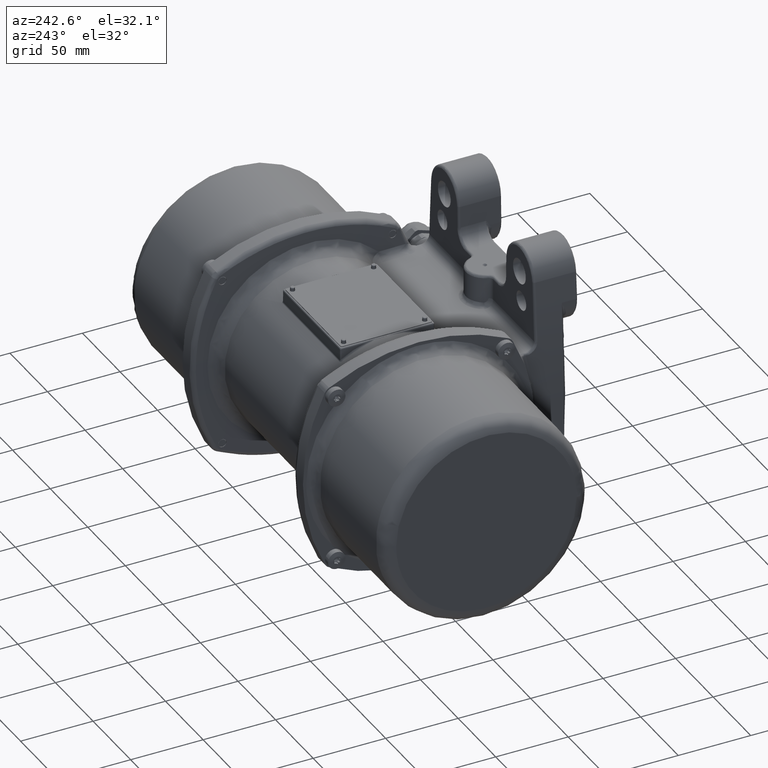
[diagram: clean part render]
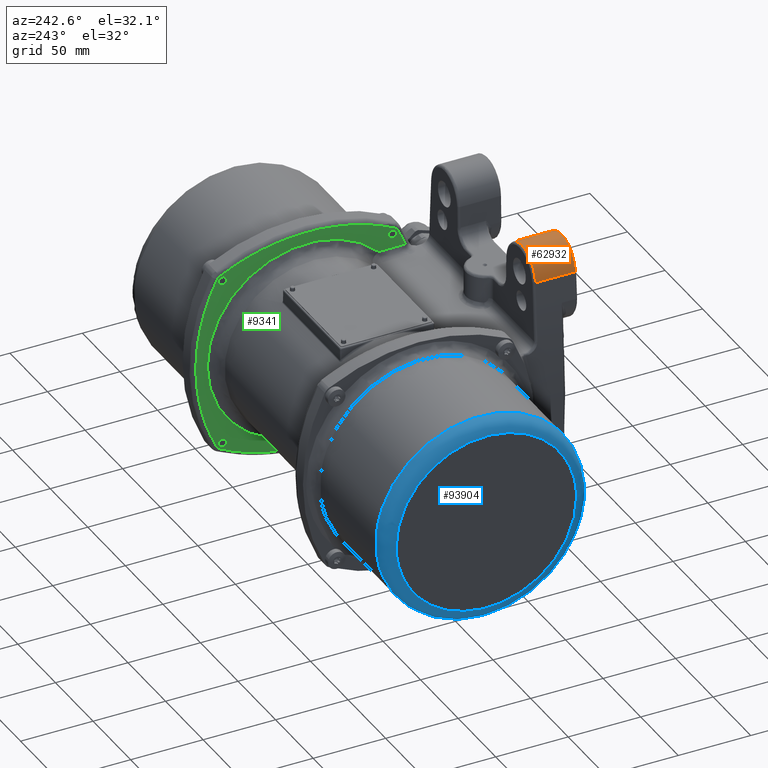
[diagram: same view with three faces highlighted in distinct colors, each labeled with its STEP entity id]
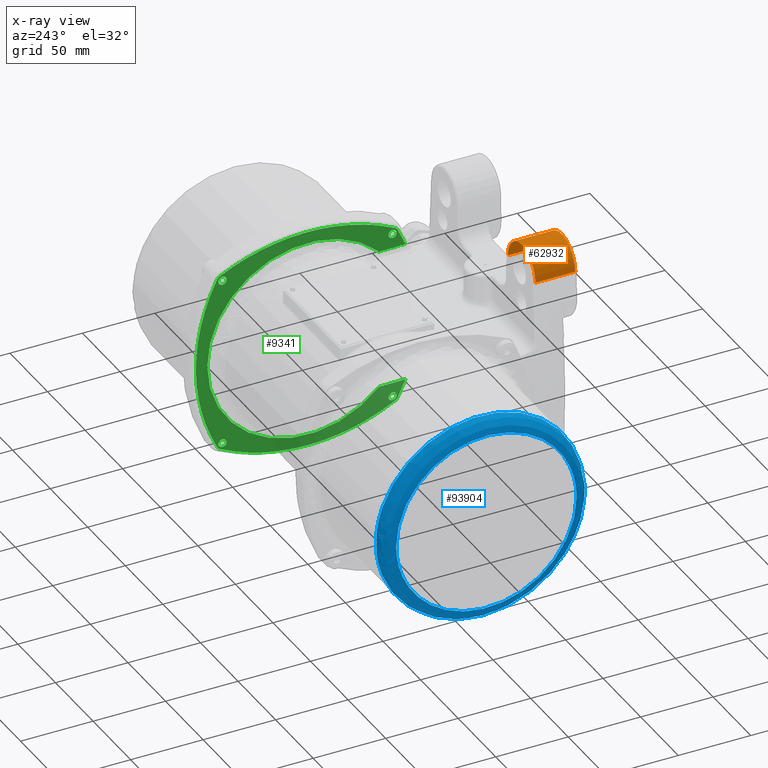
[diagram: x-ray of the same camera — body ghosted, the three highlighted faces saturated]
A machine part, auxiliary view with three faces highlighted in distinct colors.
The next image is the same camera in x-ray (body ghosted, the three faces saturated) — at least one of them is partly hidden behind the body in this view.
Their STEP definitions:

[orange] entity #62932 — the highlighted cylindrical surface (edge-blend (fillet) strip) has radius 18.5 mm, axis along (-0, -1, -0).
#823 = AXIS2_PLACEMENT_3D ( 'NONE', #49502, #124528, #109558 ) ;
#2958 = VERTEX_POINT ( 'NONE', #126443 ) ;
#5152 = AXIS2_PLACEMENT_3D ( 'NONE', #75757, #39382, #17972 ) ;
#7775 = DIRECTION ( 'NONE',  ( 0.0000000000000000000, -1.172110456741085600E-017, -1.000000000000000000 ) ) ;
#9388 = VERTEX_POINT ( 'NONE', #95147 ) ;
#10365 = EDGE_CURVE ( 'NONE', #9388, #101169, #24649, .T. ) ;
#12108 = CARTESIAN_POINT ( 'NONE',  ( -50.00000000000000000, 0.9999999999998200300, 90.00000000000000000 ) ) ;
#17972 = DIRECTION ( 'NONE',  ( 0.0000000000000000000, 0.0000000000000000000, -1.000000000000000000 ) ) ;
#20114 = EDGE_CURVE ( 'NONE', #2958, #59057, #30025, .T. ) ;
#23498 = ORIENTED_EDGE ( 'NONE', *, *, #87022, .F. ) ;
#24649 = CIRCLE ( 'NONE', #823, 18.50000000000000400 ) ;
#28690 = CYLINDRICAL_SURFACE ( 'NONE', #5152, 18.50000000000000400 ) ;
#29132 = ORIENTED_EDGE ( 'NONE', *, *, #10365, .F. ) ;
#30025 = CIRCLE ( 'NONE', #57916, 18.50000000000000400 ) ;
#39382 = DIRECTION ( 'NONE',  ( -1.942890293094024900E-016, -1.000000000000000000, -2.651940049159189700E-017 ) ) ;
#49502 = CARTESIAN_POINT ( 'NONE',  ( -50.00000000000000000, 28.50000000000000000, 90.00000000000000000 ) ) ;
#52918 = DIRECTION ( 'NONE',  ( 1.942890293094024900E-016, 1.000000000000000000, 2.651940049159189700E-017 ) ) ;
#53870 = ORIENTED_EDGE ( 'NONE', *, *, #20114, .T. ) ;
#55596 = ORIENTED_EDGE ( 'NONE', *, *, #116195, .T. ) ;
#57916 = AXIS2_PLACEMENT_3D ( 'NONE', #12108, #78461, #7775 ) ;
#59057 = VERTEX_POINT ( 'NONE', #98348 ) ;
#61078 = DIRECTION ( 'NONE',  ( 1.942890293094024900E-016, 1.000000000000000000, 2.651940049159189700E-017 ) ) ;
#62932 = ADVANCED_FACE ( 'NONE', ( #129433 ), #28690, .T. ) ;
#74311 = LINE ( 'NONE', #110804, #93098 ) ;
#75757 = CARTESIAN_POINT ( 'NONE',  ( -50.00000000000000000, 30.00000000000000000, 90.00000000000000000 ) ) ;
#78461 = DIRECTION ( 'NONE',  ( 1.942890293094024900E-016, 1.000000000000000000, 2.651940049159189700E-017 ) ) ;
#87022 = EDGE_CURVE ( 'NONE', #2958, #9388, #116767, .T. ) ;
#91080 = CARTESIAN_POINT ( 'NONE',  ( -68.44412770809559300, 30.00000000000000000, 91.43671607753700000 ) ) ;
#93098 = VECTOR ( 'NONE', #52918, 1000.000000000000000 ) ;
#95147 = CARTESIAN_POINT ( 'NONE',  ( -68.44412770809570600, 28.50000000000000000, 91.43671607753690000 ) ) ;
#98348 = CARTESIAN_POINT ( 'NONE',  ( -31.50633948795230000, 0.9999999999998339100, 90.48427354369570700 ) ) ;
#101169 = VERTEX_POINT ( 'NONE', #122548 ) ;
#109558 = DIRECTION ( 'NONE',  ( 0.0000000000000000000, 0.0000000000000000000, 1.000000000000000000 ) ) ;
#110804 = CARTESIAN_POINT ( 'NONE',  ( -31.50633948795230000, 30.00000000000000000, 90.48427354369570700 ) ) ;
#111306 = EDGE_LOOP ( 'NONE', ( #29132, #23498, #53870, #55596 ) ) ;
#116195 = EDGE_CURVE ( 'NONE', #59057, #101169, #74311, .T. ) ;
#116767 = LINE ( 'NONE', #91080, #116851 ) ;
#116851 = VECTOR ( 'NONE', #61078, 1000.000000000000000 ) ;
#122548 = CARTESIAN_POINT ( 'NONE',  ( -31.50633948795225000, 28.50000000000000000, 90.48427354369570700 ) ) ;
#124528 = DIRECTION ( 'NONE',  ( 1.942890293094024900E-016, 1.000000000000000000, 2.651940049159189700E-017 ) ) ;
#126443 = CARTESIAN_POINT ( 'NONE',  ( -68.44412770809579200, 0.9999999999998759900, 91.43671607753690000 ) ) ;
#129433 = FACE_OUTER_BOUND ( 'NONE', #111306, .T. ) ;

[blue] entity #93904 — the highlighted face is a freeform B-spline surface patch.
#2977 = CARTESIAN_POINT ( 'NONE',  ( -170.0000000000000000, 177.1999999999999900, 4.976537071042610100E-013 ) ) ;
#3915 = CARTESIAN_POINT ( 'NONE',  ( -166.1892352261678500, 186.4000000000006900, 4.909975242810231500E-013 ) ) ;
#4905 =( BOUNDED_CURVE ( )  B_SPLINE_CURVE ( 3, ( #2977, #77992, #20164, #95196 ),
 .UNSPECIFIED., .F., .F. ) 
 B_SPLINE_CURVE_WITH_KNOTS ( ( 4, 4 ),
 ( 0.0000000000000000000, 1.000000000000000000 ),
 .UNSPECIFIED. ) 
 CURVE ( )  GEOMETRIC_REPRESENTATION_ITEM ( )  RATIONAL_B_SPLINE_CURVE ( ( 1.000000000000000000, 0.3333333333333327600, 0.3333333333333327600, 1.000000000000000000 ) ) 
 REPRESENTATION_ITEM ( '' )  );
#6491 = CARTESIAN_POINT ( 'NONE',  ( -170.0000000000003100, 182.5892352261682000, 135.1784704523368800 ) ) ;
#7066 = DIRECTION ( 'NONE',  ( 1.000000000000000000, 2.857509198010475400E-015, -1.095781623858763900E-016 ) ) ;
#8617 = CARTESIAN_POINT ( 'NONE',  ( -169.9999999999999700, 47.41076477383176500, 4.854895838014387500E-013 ) ) ;
#9084 = VERTEX_POINT ( 'NONE', #17741 ) ;
#16758 = CARTESIAN_POINT ( 'NONE',  ( -160.8000000000002100, 186.4000000000006300, 142.8000000000016900 ) ) ;
#17242 = CARTESIAN_POINT ( 'NONE',  ( -170.0000000000003400, 182.5892352261682000, 4.924061574003112900E-013 ) ) ;
#17741 = CARTESIAN_POINT ( 'NONE',  ( -160.7999999999998100, 43.60000000000000100, 4.869488774574468900E-013 ) ) ;
#20164 = CARTESIAN_POINT ( 'NONE',  ( -170.0000000000000000, 52.79999999999935800, 124.4000000000019100 ) ) ;
#21071 = CARTESIAN_POINT ( 'NONE',  ( -160.8000000000002400, 186.4000000000006300, -142.8000000000007200 ) ) ;
#24374 = EDGE_LOOP ( 'NONE', ( #111796, #111690 ) ) ;
#25388 = CARTESIAN_POINT ( 'NONE',  ( -160.8000000000002100, 186.4000000000006300, 4.889306255564027300E-013 ) ) ;
#25603 = CARTESIAN_POINT ( 'NONE',  ( -169.9999999999999700, 52.79999999999936500, 4.855643744643539100E-013 ) ) ;
#29698 = CARTESIAN_POINT ( 'NONE',  ( -160.7999999999998100, 43.59999999999939700, 4.869488774574470900E-013 ) ) ;
#34234 = CARTESIAN_POINT ( 'NONE',  ( -170.0000000000003400, 177.2000000000005900, 4.923313667373961300E-013 ) ) ;
#36521 = AXIS2_PLACEMENT_3D ( 'NONE', #122851, #7066, #116429 ) ;
#38120 = CARTESIAN_POINT ( 'NONE',  ( -166.1892352261674000, 43.59999999999929100, 4.860630637183241500E-013 ) ) ;
#38613 = VERTEX_POINT ( 'NONE', #91697 ) ;
#42566 = VERTEX_POINT ( 'NONE', #88811 ) ;
#42759 = CARTESIAN_POINT ( 'NONE',  ( -169.9999999999999700, 52.79999999999936500, 4.855643744643539100E-013 ) ) ;
#42943 = CARTESIAN_POINT ( 'NONE',  ( -166.1892352261677700, 186.4000000000006300, 142.8000000000018600 ) ) ;
#43989 = CIRCLE ( 'NONE', #36521, 71.40000000000000600 ) ;
#45085 = CARTESIAN_POINT ( 'NONE',  ( -170.0000000000003400, 182.5892352261682000, -135.1784704523359200 ) ) ;
#46900 = FACE_OUTER_BOUND ( 'NONE', #56637, .T. ) ;
#48899 = CARTESIAN_POINT ( 'NONE',  ( -160.7999999999997800, 43.59999999999939000, 142.8000000000016900 ) ) ;
#56637 = EDGE_LOOP ( 'NONE', ( #94274 ) ) ;
#57493 = CARTESIAN_POINT ( 'NONE',  ( -166.1892352261674300, 43.59999999999929800, -142.8000000000008600 ) ) ;
#59887 = CARTESIAN_POINT ( 'NONE',  ( -169.9999999999999700, 47.41076477383176500, 4.854895838014387500E-013 ) ) ;
#61130 = EDGE_CURVE ( 'NONE', #9084, #9084, #43989, .T. ) ;
#64083 =( BOUNDED_SURFACE ( )  B_SPLINE_SURFACE ( 3, 3, ( 
 ( #25603, #122096, #72683, #34234, #109256, #94222, #42759 ),
 ( #59887, #126432, #6491, #17242, #45085, #130829, #8617 ),
 ( #83615, #100807, #42943, #3915, #83113, #57493, #38120 ),
 ( #132553, #48899, #16758, #25388, #21071, #117540, #29698 ) ),
 .UNSPECIFIED., .F., .T., .F. ) 
 B_SPLINE_SURFACE_WITH_KNOTS ( ( 4, 4 ),
 ( 4, 3, 4 ),
 ( 0.0000000000000000000, 1.000000000000000000 ),
 ( 0.0000000000000000000, 0.5000000000000000000, 1.000000000000000000 ),
 .UNSPECIFIED. ) 
 GEOMETRIC_REPRESENTATION_ITEM ( )  RATIONAL_B_SPLINE_SURFACE ( (
 ( 1.000000000000000000, 0.3333333333333333100, 0.3333333333333333100, 1.000000000000000000, 0.3333333333333333100, 0.3333333333333333100, 1.000000000000000000),
 ( 0.8047378541243608300, 0.2682459513747869100, 0.2682459513747869100, 0.8047378541243608300, 0.2682459513747869100, 0.2682459513747869100, 0.8047378541243608300),
 ( 0.8047378541243608300, 0.2682459513747869100, 0.2682459513747869100, 0.8047378541243608300, 0.2682459513747869100, 0.2682459513747869100, 0.8047378541243608300),
 ( 1.000000000000000000, 0.3333333333333333100, 0.3333333333333333100, 1.000000000000000000, 0.3333333333333333100, 0.3333333333333333100, 1.000000000000000000) ) ) 
 REPRESENTATION_ITEM ( '' )  SURFACE ( )  );
#64312 =( BOUNDED_CURVE ( )  B_SPLINE_CURVE ( 3, ( #103559, #95041, #92928, #120815 ),
 .UNSPECIFIED., .F., .F. ) 
 B_SPLINE_CURVE_WITH_KNOTS ( ( 4, 4 ),
 ( 0.0000000000000000000, 1.000000000000000000 ),
 .UNSPECIFIED. ) 
 CURVE ( )  GEOMETRIC_REPRESENTATION_ITEM ( )  RATIONAL_B_SPLINE_CURVE ( ( 1.000000000000000000, 0.3333333333333324800, 0.3333333333333324800, 1.000000000000000000 ) ) 
 REPRESENTATION_ITEM ( '' )  );
#72683 = CARTESIAN_POINT ( 'NONE',  ( -170.0000000000003700, 177.2000000000005900, 124.4000000000016700 ) ) ;
#77992 = CARTESIAN_POINT ( 'NONE',  ( -170.0000000000003400, 177.2000000000007800, 124.4000000000018200 ) ) ;
#83113 = CARTESIAN_POINT ( 'NONE',  ( -166.1892352261678000, 186.4000000000006300, -142.8000000000008600 ) ) ;
#83615 = CARTESIAN_POINT ( 'NONE',  ( -166.1892352261674000, 43.59999999999929100, 4.860630637183241500E-013 ) ) ;
#87703 = EDGE_CURVE ( 'NONE', #38613, #42566, #64312, .T. ) ;
#88811 = CARTESIAN_POINT ( 'NONE',  ( -170.0000000000000000, 177.1999999999999900, 4.976537071042610100E-013 ) ) ;
#91697 = CARTESIAN_POINT ( 'NONE',  ( -170.0000000000000000, 52.79999999999930100, 4.880846721992290000E-013 ) ) ;
#91825 = FACE_OUTER_BOUND ( 'NONE', #24374, .T. ) ;
#92928 = CARTESIAN_POINT ( 'NONE',  ( -170.0000000000003100, 177.2000000000003900, -124.4000000000011100 ) ) ;
#93904 = ADVANCED_FACE ( 'NONE', ( #91825, #46900 ), #64083, .T. ) ;
#94222 = CARTESIAN_POINT ( 'NONE',  ( -170.0000000000000300, 52.79999999999936500, -124.4000000000007200 ) ) ;
#94274 = ORIENTED_EDGE ( 'NONE', *, *, #61130, .F. ) ;
#95041 = CARTESIAN_POINT ( 'NONE',  ( -169.9999999999999700, 52.79999999999882500, -124.4000000000007400 ) ) ;
#95196 = CARTESIAN_POINT ( 'NONE',  ( -170.0000000000000000, 52.79999999999930100, 4.880846721992290000E-013 ) ) ;
#100807 = CARTESIAN_POINT ( 'NONE',  ( -166.1892352261673700, 43.59999999999927700, 142.8000000000019200 ) ) ;
#103559 = CARTESIAN_POINT ( 'NONE',  ( -170.0000000000000000, 52.79999999999930100, 4.880846721992290000E-013 ) ) ;
#108200 = EDGE_CURVE ( 'NONE', #42566, #38613, #4905, .T. ) ;
#109256 = CARTESIAN_POINT ( 'NONE',  ( -170.0000000000003700, 177.2000000000005900, -124.4000000000007200 ) ) ;
#111690 = ORIENTED_EDGE ( 'NONE', *, *, #108200, .T. ) ;
#111796 = ORIENTED_EDGE ( 'NONE', *, *, #87703, .T. ) ;
#116429 = DIRECTION ( 'NONE',  ( 2.721134864277344300E-015, -1.000000000000000000, -1.387778780781525800E-017 ) ) ;
#117540 = CARTESIAN_POINT ( 'NONE',  ( -160.7999999999998700, 43.59999999999939000, -142.8000000000007200 ) ) ;
#120815 = CARTESIAN_POINT ( 'NONE',  ( -170.0000000000000000, 177.1999999999999900, 4.976537071042610100E-013 ) ) ;
#122096 = CARTESIAN_POINT ( 'NONE',  ( -169.9999999999999700, 52.79999999999935800, 124.4000000000017100 ) ) ;
#122851 = CARTESIAN_POINT ( 'NONE',  ( -160.8000000000000100, 115.0000000000000000, 4.879397515069249600E-013 ) ) ;
#126432 = CARTESIAN_POINT ( 'NONE',  ( -169.9999999999999100, 47.41076477383175800, 135.1784704523368800 ) ) ;
#130829 = CARTESIAN_POINT ( 'NONE',  ( -169.9999999999999400, 47.41076477383177200, -135.1784704523359400 ) ) ;
#132553 = CARTESIAN_POINT ( 'NONE',  ( -160.7999999999998100, 43.59999999999939700, 4.869488774574470900E-013 ) ) ;

[green] entity #9341 — the highlighted conical surface has half-angle 88.5 deg.
#118 = ORIENTED_EDGE ( 'NONE', *, *, #125296, .T. ) ;
#761 = B_SPLINE_CURVE_WITH_KNOTS ( 'NONE', 3,
 ( #84798, #26961, #82691, #101986, #31308, #7679, #12117, #130013, #87100, #46428, #14238, #89243, #24954, #37875, #18649, #104390, #80665, #22838, #9990, #35792, #3568, #119342, #112940, #70013, #100097, #97877, #115019, #57161, #55035, #27165, #130113, #117218, #61431, #85003, #132217, #74237, #65729, #87200, #33587, #110833, #82877, #31499, #106496, #123662, #42205, #25047, #52941, #50750, #125783, #67824, #130460, #78920, #119703, #109061, #66075, #1790, #10446, #21080, #104725, #102536, #36125, #44692, #72468, #18989, #81103, #53288 ),
 .UNSPECIFIED., .T., .F.,
 ( 4, 2, 2, 2, 2, 2, 2, 2, 2, 2, 2, 2, 2, 2, 2, 2, 2, 2, 2, 2, 2, 2, 2, 2, 2, 2, 2, 2, 2, 2, 2, 2, 4 ),
 ( 0.0000000000000000000, 0.0005440791090078222400, 0.001088158218015644500, 0.001632237327023466800, 0.002176316436031289000, 0.002720395545039111100, 0.003264474654046933600, 0.003808553763054755800, 0.004352632872062577900, 0.004896711981070400000, 0.005440791090078222200, 0.005984870199086044300, 0.006528949308093867300, 0.007073028417101689400, 0.007617107526109511600, 0.008161186635117332800, 0.008705265744125155800, 0.009249344853132978800, 0.009793423962140800100, 0.01033750307114862300, 0.01088158218015644400, 0.01142566128916426700, 0.01196974039817208900, 0.01251381950717991200, 0.01305789861618773500, 0.01360197772519555600, 0.01414605683420337900, 0.01469013594321120000, 0.01523421505221902300, 0.01577829416122684600, 0.01632237327023466600, 0.01686645237924248900, 0.01741053148825031200 ),
 .UNSPECIFIED. ) ;
#1068 = CARTESIAN_POINT ( 'NONE',  ( 68.11549691083669700, 59.28056571215131500, 64.82114588486948000 ) ) ;
#1790 = CARTESIAN_POINT ( 'NONE',  ( 67.98243974128918400, 58.52534959779978200, -56.99410607440301400 ) ) ;
#1934 = CARTESIAN_POINT ( 'NONE',  ( 67.97301996694855600, 188.0484941787175000, 32.31368023353537900 ) ) ;
#1966 = CARTESIAN_POINT ( 'NONE',  ( 67.96659468205619700, 84.14121999406508200, -73.40773806297400500 ) ) ;
#1996 = CARTESIAN_POINT ( 'NONE',  ( 68.07483018036940300, 172.2925958567949200, -61.10540579369057200 ) ) ;
#2114 = CARTESIAN_POINT ( 'NONE',  ( 67.90546029082759100, 191.7708836583874500, -9.083832150474524500 ) ) ;
#2160 = CARTESIAN_POINT ( 'NONE',  ( 67.90160704493429500, 120.2646416976861300, -76.97955387142963000 ) ) ;
#2952 = CARTESIAN_POINT ( 'NONE',  ( 68.11326350471657100, 176.4568944267230700, 59.05437285573358300 ) ) ;
#3117 = CARTESIAN_POINT ( 'NONE',  ( 67.88205095963344600, 56.31101324370038700, -48.91620311132926700 ) ) ;
#3136 = CARTESIAN_POINT ( 'NONE',  ( 68.06742221459479900, 47.35745034409490000, -48.92329581375170000 ) ) ;
#3283 = CARTESIAN_POINT ( 'NONE',  ( 68.01576802271202400, 155.9760567459920000, 70.64352898251459600 ) ) ;
#3568 = CARTESIAN_POINT ( 'NONE',  ( 68.12058405443986000, 53.66630419484485500, -59.58426345392444300 ) ) ;
#4053 = CARTESIAN_POINT ( 'NONE',  ( 67.99127184336323600, 187.0223535556432100, 36.14226505163386300 ) ) ;
#4116 = CARTESIAN_POINT ( 'NONE',  ( 68.06085197015563900, 171.8502796133727200, -60.78827420608994500 ) ) ;
#4204 = CARTESIAN_POINT ( 'NONE',  ( 68.10007684782544900, 176.4567628427366200, -58.32525409717462800 ) ) ;
#4231 = CARTESIAN_POINT ( 'NONE',  ( 67.92245417087853800, 190.8462006964246900, 17.98402440078667700 ) ) ;
#5169 = CARTESIAN_POINT ( 'NONE',  ( 68.08809745806637200, 176.3319407380149600, 57.79138676812053200 ) ) ;
#5269 = CARTESIAN_POINT ( 'NONE',  ( 67.98434756001073300, 58.72587431911996000, 57.29427782874240200 ) ) ;
#5311 = CARTESIAN_POINT ( 'NONE',  ( 67.92245417092510700, 97.01597558491049300, 75.84620069491629100 ) ) ;
#5450 = CARTESIAN_POINT ( 'NONE',  ( 68.15693973913001000, 175.5852792670379800, 62.29662973931650100 ) ) ;
#6419 = CARTESIAN_POINT ( 'NONE',  ( 67.92964665563886200, 190.4531861503516800, -20.78133612100248200 ) ) ;
#6862 = CARTESIAN_POINT ( 'NONE',  ( 68.00391549459431000, 173.6898628384834900, -55.90582421417850200 ) ) ;
#7253 = CARTESIAN_POINT ( 'NONE',  ( 67.98243663081650800, 171.4751820203621500, 56.99341210366281300 ) ) ;
#7354 = CARTESIAN_POINT ( 'NONE',  ( 68.12550377173239700, 54.91540715188837400, 61.10742876369401000 ) ) ;
#7452 = CARTESIAN_POINT ( 'NONE',  ( 68.01923268991888000, 59.00530379301753900, 59.41154510584802000 ) ) ;
#7494 = CARTESIAN_POINT ( 'NONE',  ( 67.91750578208925000, 99.11779388092796200, 76.11630185232313300 ) ) ;
#7501 = B_SPLINE_CURVE_WITH_KNOTS ( 'NONE', 3,
 ( #66906, #9054, #71207, #43391, #118408, #88410 ),
 .UNSPECIFIED., .F., .F.,
 ( 4, 2, 4 ),
 ( 0.0000000000000000000, 0.5000000000000000000, 1.000000000000000000 ),
 .UNSPECIFIED. ) ;
#7679 = CARTESIAN_POINT ( 'NONE',  ( 68.03247927785545800, 55.07554338873526200, -56.18759696063841600 ) ) ;
#7941 = EDGE_LOOP ( 'NONE', ( #51236, #81627, #70793, #72374, #128962, #68681, #117466, #118, #72995, #47418, #26034, #128430 ) ) ;
#8313 = CARTESIAN_POINT ( 'NONE',  ( 67.91413438822097200, 100.7056424485996900, -76.29994721930059100 ) ) ;
#8542 = CARTESIAN_POINT ( 'NONE',  ( 67.91136970598566300, 191.4507871748405700, 13.10314225146191100 ) ) ;
#8586 = CARTESIAN_POINT ( 'NONE',  ( 67.98229071631413900, 149.3047266473652400, -72.52824100313036100 ) ) ;
#8870 = EDGE_CURVE ( 'NONE', #44128, #67936, #7501, .T. ) ;
#9026 = B_SPLINE_CURVE_WITH_KNOTS ( 'NONE', 3,
 ( #25477, #53379, #121974, #130802, #107198, #117639, #94093, #8586, #100513, #66433, #96481, #36204, #70704, #72823, #49365, #15028, #90045, #124375, #100776, #122239, #94367, #117923, #83588, #128699, #25751, #60042, #12907, #70438, #2160, #12632, #83308, #66159, #104819, #77145, #76879, #87918, #111255, #105083, #87624, #8313, #59772, #42627, #30072, #29797, #100604, #51276, #74758, #87721, #40581, #130621, #1966, #34110, #72641, #68349, #19155, #55550, #59849, #57675, #128514 ),
 .UNSPECIFIED., .F., .F.,
 ( 4, 2, 2, 2, 1, 1, 1, 1, 2, 2, 2, 2, 1, 1, 2, 2, 2, 2, 2, 2, 2, 2, 1, 2, 2, 2, 2, 1, 1, 1, 1, 2, 2, 2, 4 ),
 ( 0.0000000000000000000, 0.1250000000000382200, 0.1875000000000576800, 0.2187500000000670000, 0.2343750000000713300, 0.2421875000000735000, 0.2460937500000745800, 0.2480468750000751600, 0.2490234375000751300, 0.2500000000000751100, 0.3125000000000693900, 0.3437500000000665600, 0.3593750000000655000, 0.3671875000000649500, 0.3710937500000643400, 0.3750000000000636700, 0.4375000000000597900, 0.4687500000000580100, 0.4843750000000569500, 0.5000000000000558400, 0.5625000000000519600, 0.5937500000000499600, 0.6093750000000491800, 0.6171875000000486300, 0.6250000000000479600, 0.6875000000000451900, 0.7187500000000436300, 0.7343750000000428500, 0.7421875000000425200, 0.7460937500000425200, 0.7480468750000424100, 0.7490234375000424100, 0.7500000000000423000, 0.8750000000000212100, 1.000000000000000000 ),
 .UNSPECIFIED. ) ;
#9054 = CARTESIAN_POINT ( 'NONE',  ( 68.16005191967451500, 175.9507302756022700, 62.10700387371529300 ) ) ;
#9341 = ADVANCED_FACE ( 'NONE', ( #112102, #129280, #71306, #13500, #49933 ), #30002, .T. ) ;
#9614 = CARTESIAN_POINT ( 'NONE',  ( 67.91786501174127000, 98.95758557277976300, 76.09671374974189500 ) ) ;
#9990 = CARTESIAN_POINT ( 'NONE',  ( 68.11324975179822200, 53.54298977055609000, -59.05349426291281400 ) ) ;
#10318 = AXIS2_PLACEMENT_3D ( 'NONE', #35068, #114398, #101465 ) ;
#10446 = CARTESIAN_POINT ( 'NONE',  ( 67.98194669371505900, 58.41036726308155400, -56.85339762873272200 ) ) ;
#10553 = CARTESIAN_POINT ( 'NONE',  ( 67.98435714610496900, 172.2952642751107500, -56.27364020234426100 ) ) ;
#10674 = CARTESIAN_POINT ( 'NONE',  ( 67.95440224940711000, 189.0864930775890700, -27.90399334623847200 ) ) ;
#10881 = EDGE_LOOP ( 'NONE', ( #109281 ) ) ;
#10977 = ORIENTED_EDGE ( 'NONE', *, *, #80321, .T. ) ;
#11610 = CARTESIAN_POINT ( 'NONE',  ( 67.98242547166100300, 171.9908902243946600, 56.47712145503800900 ) ) ;
#11703 = CARTESIAN_POINT ( 'NONE',  ( 67.98243529753330000, 58.00670666141377300, 56.47523109797668900 ) ) ;
#11754 = CARTESIAN_POINT ( 'NONE',  ( 67.91045386476675100, 127.3399248202795300, 76.50002776627705700 ) ) ;
#11789 = CARTESIAN_POINT ( 'NONE',  ( 67.91336080452443000, 54.76338476628609400, -48.91753161827273300 ) ) ;
#12117 = CARTESIAN_POINT ( 'NONE',  ( 68.03706574539886300, 54.91562617842971200, -56.27306437433745900 ) ) ;
#12124 = VERTEX_POINT ( 'NONE', #67830 ) ;
#12632 = CARTESIAN_POINT ( 'NONE',  ( 67.90051686722333100, 118.3043035308513000, -77.03860208067273200 ) ) ;
#12907 = CARTESIAN_POINT ( 'NONE',  ( 67.90703509559440900, 125.4903817484110700, -76.68557629992220400 ) ) ;
#12933 = CARTESIAN_POINT ( 'NONE',  ( 68.02355860437465700, 174.5880382144959500, -56.04818827605054600 ) ) ;
#13500 = FACE_BOUND ( 'NONE', #10881, .T. ) ;
#13737 = CARTESIAN_POINT ( 'NONE',  ( 67.98959152471697100, 171.0472151312739600, 57.79551852191730900 ) ) ;
#13829 = CARTESIAN_POINT ( 'NONE',  ( 68.10376338366265300, 53.52507954620634900, 58.51055938750322800 ) ) ;
#13924 = CARTESIAN_POINT ( 'NONE',  ( 68.03709182527148900, 58.72639931552782100, 60.08523601874966900 ) ) ;
#14056 = CARTESIAN_POINT ( 'NONE',  ( 68.15693973913001000, 175.5852792670379800, 62.29662973931650100 ) ) ;
#14168 = CARTESIAN_POINT ( 'NONE',  ( 67.75226979991201400, 62.91084686697951200, 48.91052641411820900 ) ) ;
#14238 = CARTESIAN_POINT ( 'NONE',  ( 68.06552499036790500, 54.09749128380426700, -56.98940326614726400 ) ) ;
#14872 = CARTESIAN_POINT ( 'NONE',  ( 67.98955183220037700, 172.7923860934716900, -56.04826848758369100 ) ) ;
#14954 = CARTESIAN_POINT ( 'NONE',  ( 68.11031107959709600, 176.4747381367635600, -58.87285058043792000 ) ) ;
#15028 = CARTESIAN_POINT ( 'NONE',  ( 67.95693877835761000, 143.6541594079516800, -73.94730692574850700 ) ) ;
#15526 = CARTESIAN_POINT ( 'NONE',  ( 68.10700339995389600, 56.31013716151569800, 61.47480109730940300 ) ) ;
#15821 = CARTESIAN_POINT ( 'NONE',  ( 68.01118329303271500, 174.0555274402822500, 55.92392462841823400 ) ) ;
#15910 = CARTESIAN_POINT ( 'NONE',  ( 67.99185988956476500, 172.9660546464590400, 55.99552365723924700 ) ) ;
#16010 = CARTESIAN_POINT ( 'NONE',  ( 68.12062144417321000, 55.41260357925249000, 61.33264339281780100 ) ) ;
#16045 = CARTESIAN_POINT ( 'NONE',  ( 67.96712132342474900, 145.9802263586755900, 73.37832876167655600 ) ) ;
#16799 = EDGE_CURVE ( 'NONE', #95693, #43486, #54697, .T. ) ;
#16967 = CARTESIAN_POINT ( 'NONE',  ( 68.00391549459431000, 173.6898628384835200, -55.90582421417848700 ) ) ;
#17083 = CARTESIAN_POINT ( 'NONE',  ( 67.91547305602762200, 191.2270736863415600, -14.94601168499115000 ) ) ;
#17819 = CARTESIAN_POINT ( 'NONE',  ( 67.69584565201749600, 65.91609151768588500, -48.90761716204679700 ) ) ;
#18029 = EDGE_CURVE ( 'NONE', #32550, #18076, #131005, .T. ) ;
#18048 = CARTESIAN_POINT ( 'NONE',  ( 68.06083717095273800, 175.7878038360572600, 56.84995516866509000 ) ) ;
#18076 = VERTEX_POINT ( 'NONE', #3136 ) ;
#18138 = CARTESIAN_POINT ( 'NONE',  ( 68.12730773919540200, 175.9054489635130100, 60.38720622442343000 ) ) ;
#18139 = CARTESIAN_POINT ( 'NONE',  ( 68.00044421188270900, 56.49318907435766600, 55.90579631640497400 ) ) ;
#18181 = CARTESIAN_POINT ( 'NONE',  ( 67.90160704491997000, 109.7353583022108100, 76.97955387087310400 ) ) ;
#18213 = CARTESIAN_POINT ( 'NONE',  ( 67.95228039766389800, 52.86037948357039100, -48.91913349283839100 ) ) ;
#18227 = CARTESIAN_POINT ( 'NONE',  ( 68.10367678001604500, 56.49407827936633500, 61.47477206633702500 ) ) ;
#18275 = CARTESIAN_POINT ( 'NONE',  ( 67.93033100120973700, 94.10497756588141300, 75.41488919214133100 ) ) ;
#18480 = CARTESIAN_POINT ( 'NONE',  ( 67.84753721059395600, 58.03520828680030500, 48.91476162011903700 ) ) ;
#18649 = CARTESIAN_POINT ( 'NONE',  ( 68.09224624444848900, 53.61483930186817300, -57.96591187460877100 ) ) ;
#18989 = CARTESIAN_POINT ( 'NONE',  ( 67.99728012137539700, 56.67813776568002000, -55.92432503641463600 ) ) ;
#19155 = CARTESIAN_POINT ( 'NONE',  ( 67.98928099581797800, 78.93892176466063400, -72.14038170001738600 ) ) ;
#19183 = CARTESIAN_POINT ( 'NONE',  ( 67.98435378743941700, 171.2736793307975900, -57.29504955321947800 ) ) ;
#19355 = CARTESIAN_POINT ( 'NONE',  ( 68.01930377429361800, 174.4145137307497200, -55.99550383136474400 ) ) ;
#19373 = EDGE_CURVE ( 'NONE', #79496, #33016, #36418, .T. ) ;
#19742 = EDGE_CURVE ( 'NONE', #106930, #32550, #123570, .T. ) ;
#19786 = B_SPLINE_CURVE_WITH_KNOTS ( 'NONE', 3,
 ( #93152, #97473, #95266, #61024, #16010, #56722, #7354, #75935, #78147, #91025, #127503, #33161, #108199, #26744, #67416, #80252, #37371, #13829, #131786, #20313, #20224, #88819, #82373, #103896, #24534, #116706, #30988, #50335, #105985, #84576, #101765, #63117, #86687, #18139, #99589, #41677, #35287, #43921, #110305, #11703, #28858, #46016, #121050, #5269, #31073, #129693, #88924, #86780, #123220, #65315, #82460, #7452, #103984, #24624, #13924, #71702, #119025, #76022, #48237, #99681, #58938, #112513, #46101, #131887, #18227, #95359 ),
 .UNSPECIFIED., .T., .F.,
 ( 4, 2, 2, 2, 2, 2, 2, 2, 2, 2, 2, 2, 2, 2, 2, 2, 2, 2, 2, 2, 2, 2, 2, 2, 2, 2, 2, 2, 2, 2, 2, 2, 4 ),
 ( 0.0000000000000000000, 0.0005440818648059648700, 0.001088163729611929700, 0.001632245594417894700, 0.002176327459223859500, 0.002720409324029824300, 0.003264491188835789500, 0.003808573053641754200, 0.004352654918447719000, 0.004896736783253683800, 0.005440818648059648500, 0.005984900512865613300, 0.006528982377671578900, 0.007073064242477543700, 0.007617146107283508500, 0.008161227972089473200, 0.008705309836895438000, 0.009249391701701402700, 0.009793473566507367500, 0.01033755543131333200, 0.01088163729611929700, 0.01142571916092526200, 0.01196980102573122700, 0.01251388289053719100, 0.01305796475534315800, 0.01360204662014912300, 0.01414612848495508700, 0.01469021034976105200, 0.01523429221456701700, 0.01577837407937298200, 0.01632245594417894600, 0.01686653780898491100, 0.01741061967379087600 ),
 .UNSPECIFIED. ) ;
#20142 = CARTESIAN_POINT ( 'NONE',  ( 68.01928569351127900, 170.9952267920232600, 59.41382740532767300 ) ) ;
#20224 = CARTESIAN_POINT ( 'NONE',  ( 68.08819959452142700, 53.66658636939241200, 57.79551194248608700 ) ) ;
#20313 = CARTESIAN_POINT ( 'NONE',  ( 68.09231749641291700, 53.61407519888513900, 57.96906479711800800 ) ) ;
#20359 = CARTESIAN_POINT ( 'NONE',  ( 67.95693877841561900, 86.34584057083903000, 73.94730691911885900 ) ) ;
#20558 = CARTESIAN_POINT ( 'NONE',  ( 67.69584565201749600, 65.91609151768588500, 48.90761716204679700 ) ) ;
#20662 = CARTESIAN_POINT ( 'NONE',  ( 67.87198109287012900, 56.81218856640898500, 48.91577846836852200 ) ) ;
#21080 = CARTESIAN_POINT ( 'NONE',  ( 67.98193685538818400, 58.15074974063806200, -56.59326659654883700 ) ) ;
#21219 = CARTESIAN_POINT ( 'NONE',  ( 67.98229071634065700, 187.5282410031049900, 34.30472664978993400 ) ) ;
#21284 = CARTESIAN_POINT ( 'NONE',  ( 68.07940790624313400, 172.4552214823269200, -61.19256977713838100 ) ) ;
#22322 = CARTESIAN_POINT ( 'NONE',  ( 68.10700339995389600, 173.6898628384835200, 61.47480109730960200 ) ) ;
#22476 = CARTESIAN_POINT ( 'NONE',  ( 67.97791729455664700, 81.61413384590251500, 72.77405291512528200 ) ) ;
#22838 = CARTESIAN_POINT ( 'NONE',  ( 68.11024709212307500, 53.52501708248912100, -58.86906158122300100 ) ) ;
#23155 = CARTESIAN_POINT ( 'NONE',  ( 68.15693973913001000, 54.41472073296150600, 62.29662973931600300 ) ) ;
#23386 = CARTESIAN_POINT ( 'NONE',  ( 68.12063145346580500, 174.5882406463221100, -61.33235615668642300 ) ) ;
#23467 = CARTESIAN_POINT ( 'NONE',  ( 68.11328118517970200, 174.0555519960028300, -61.45669644799471600 ) ) ;
#23524 = B_SPLINE_CURVE_WITH_KNOTS ( 'NONE', 3,
 ( #28001, #83625, #100819, #75075, #64371, #130935 ),
 .UNSPECIFIED., .F., .F.,
 ( 4, 2, 4 ),
 ( 0.0000000000000000000, 0.5000000000000000000, 1.000000000000000000 ),
 .UNSPECIFIED. ) ;
#24434 = CARTESIAN_POINT ( 'NONE',  ( 68.10367677226877000, 173.5059212922603500, 61.47477206626958700 ) ) ;
#24534 = CARTESIAN_POINT ( 'NONE',  ( 68.06094459908403800, 54.20938343759362300, 56.85295376667359300 ) ) ;
#24624 = CARTESIAN_POINT ( 'NONE',  ( 68.03241554704382600, 58.81352123233542500, 59.92216889126202500 ) ) ;
#24673 = CARTESIAN_POINT ( 'NONE',  ( 67.90024350714765000, 112.3492509789282700, 77.05341401986113700 ) ) ;
#24954 = CARTESIAN_POINT ( 'NONE',  ( 68.07941734184969100, 53.80732157932208500, -57.45563143804572800 ) ) ;
#24976 = CARTESIAN_POINT ( 'NONE',  ( 67.99919370740512600, 50.57138422460211300, 48.92091662233431000 ) ) ;
#25047 = CARTESIAN_POINT ( 'NONE',  ( 68.02361032988770300, 58.95104613547438500, -59.59002937119876700 ) ) ;
#25477 = CARTESIAN_POINT ( 'NONE',  ( 68.15693973913001000, 175.5852792670385200, -62.29662973931600300 ) ) ;
#25533 = VERTEX_POINT ( 'NONE', #113057 ) ;
#25536 = CARTESIAN_POINT ( 'NONE',  ( 67.97791729450145200, 187.7740529169404900, 33.38586614499927700 ) ) ;
#25709 = CARTESIAN_POINT ( 'NONE',  ( 67.90118565947489100, 192.0024013500485000, -5.177091901095052700 ) ) ;
#25751 = CARTESIAN_POINT ( 'NONE',  ( 67.91750578208858300, 130.8822061190735200, -76.11630185229745400 ) ) ;
#26034 = ORIENTED_EDGE ( 'NONE', *, *, #26302, .T. ) ;
#26302 = EDGE_CURVE ( 'NONE', #67936, #79496, #59452, .T. ) ;
#26546 = CARTESIAN_POINT ( 'NONE',  ( 68.15693973913001000, 177.2966297393165000, -60.58527926703800400 ) ) ;
#26612 = CARTESIAN_POINT ( 'NONE',  ( 68.15693973913001000, 54.41472073296189600, -62.29662973931650100 ) ) ;
#26744 = CARTESIAN_POINT ( 'NONE',  ( 68.12064170316793400, 53.66805874195727500, 59.58922633792624900 ) ) ;
#26791 = CARTESIAN_POINT ( 'NONE',  ( 67.91547305602975400, 129.9460116832619900, 76.22707368676860500 ) ) ;
#26961 = CARTESIAN_POINT ( 'NONE',  ( 68.00740250958003200, 56.12619863426500900, -55.90579378345891100 ) ) ;
#27086 = CARTESIAN_POINT ( 'NONE',  ( 67.87503809927703500, 56.65987917397512100, 48.91590652241635700 ) ) ;
#27126 = ORIENTED_EDGE ( 'NONE', *, *, #124490, .T. ) ;
#27165 = CARTESIAN_POINT ( 'NONE',  ( 68.12064030027727300, 55.41102894355331200, -61.33211799271460100 ) ) ;
#27716 = CARTESIAN_POINT ( 'NONE',  ( 68.00734753411612100, 170.9057611396807800, -58.87093373410757400 ) ) ;
#27804 = CARTESIAN_POINT ( 'NONE',  ( 68.12063185615745900, 176.3322236514501100, -59.58839598635935900 ) ) ;
#27829 = CARTESIAN_POINT ( 'NONE',  ( 67.96295861044096400, 188.6106031317876600, -30.00869208529179500 ) ) ;
#28001 = CARTESIAN_POINT ( 'NONE',  ( 68.15693973364440700, 52.70336992652619300, 60.58527862297079700 ) ) ;
#28767 = CARTESIAN_POINT ( 'NONE',  ( 68.05133169206494900, 175.5309994639280000, 56.59311043902388900 ) ) ;
#28858 = CARTESIAN_POINT ( 'NONE',  ( 67.98194199054758300, 58.15004851532043500, 56.59283339996860500 ) ) ;
#28904 = CARTESIAN_POINT ( 'NONE',  ( 67.92964665553280700, 135.7813360893821900, 75.45318615485881300 ) ) ;
#29206 = CARTESIAN_POINT ( 'NONE',  ( 67.87349033596889600, 56.73697951907431000, 48.91584165628690800 ) ) ;
#29797 = CARTESIAN_POINT ( 'NONE',  ( 67.92964665554932000, 94.21866389900589000, -75.45318615231734300 ) ) ;
#29908 = CARTESIAN_POINT ( 'NONE',  ( 67.98194303260477500, 171.5924469806582200, -56.85039229398208200 ) ) ;
#30000 = CARTESIAN_POINT ( 'NONE',  ( 68.07488836432021600, 176.1065701723718500, -57.29460265875847100 ) ) ;
#30002 = CONICAL_SURFACE ( 'NONE', #10318, 87.18464706330020400, 1.544616388014987000 ) ;
#30072 = CARTESIAN_POINT ( 'NONE',  ( 67.92256031625497300, 96.80909768318882400, -75.84080583567336500 ) ) ;
#30530 = VERTEX_POINT ( 'NONE', #23155 ) ;
#30887 = CARTESIAN_POINT ( 'NONE',  ( 68.00742016016549500, 173.8746753552129600, 55.90585215644713200 ) ) ;
#30988 = CARTESIAN_POINT ( 'NONE',  ( 68.04656821073257300, 54.60986377149059500, 56.47742094279732300 ) ) ;
#31073 = CARTESIAN_POINT ( 'NONE',  ( 67.98579346616259000, 58.81240494401271200, 57.45635761912230100 ) ) ;
#31117 = CARTESIAN_POINT ( 'NONE',  ( 68.07905212715255100, 64.17010474149142900, 66.97388963589349900 ) ) ;
#31308 = CARTESIAN_POINT ( 'NONE',  ( 68.02353978087030800, 55.41271520293207700, -56.04794010763955500 ) ) ;
#31499 = CARTESIAN_POINT ( 'NONE',  ( 68.05134171151540600, 58.40663732550272200, -60.53128745165349800 ) ) ;
#32030 = CARTESIAN_POINT ( 'NONE',  ( 68.11841566667648400, 174.4114068892801000, -61.38591931916504800 ) ) ;
#32118 = CARTESIAN_POINT ( 'NONE',  ( 68.09229801364932700, 176.3856984672566200, -57.96822072984901600 ) ) ;
#32550 = VERTEX_POINT ( 'NONE', #68353 ) ;
#32979 = CARTESIAN_POINT ( 'NONE',  ( 68.00740532142133100, 170.9059492720998300, 58.87379804715350000 ) ) ;
#33016 = VERTEX_POINT ( 'NONE', #34434 ) ;
#33023 = CARTESIAN_POINT ( 'NONE',  ( 68.16162533661432100, 53.13607690585753600, -61.28297289810896600 ) ) ;
#33159 = CARTESIAN_POINT ( 'NONE',  ( 68.10700339995389600, 173.6898628384835200, 61.47480109730960200 ) ) ;
#33161 = CARTESIAN_POINT ( 'NONE',  ( 68.12551856242750100, 53.89349704730251700, 60.08634341116310700 ) ) ;
#33211 = CARTESIAN_POINT ( 'NONE',  ( 67.94701897626319500, 88.93194098611607500, 74.49637783463138900 ) ) ;
#33587 = CARTESIAN_POINT ( 'NONE',  ( 68.07493563635954100, 57.70378922817153000, -61.10753716624669400 ) ) ;
#34110 = CARTESIAN_POINT ( 'NONE',  ( 67.96712132342540300, 84.01977364085526300, -73.37832876150676500 ) ) ;
#34253 = CARTESIAN_POINT ( 'NONE',  ( 67.91972290155554500, 190.9953568896740400, 16.85151334343008900 ) ) ;
#34434 = CARTESIAN_POINT ( 'NONE',  ( 68.15693973913001000, 175.5852792670385200, -62.29662973931600300 ) ) ;
#35068 = CARTESIAN_POINT ( 'NONE',  ( 68.16441817311830700, 115.0000000000000000, -3.592505702492124900E-015 ) ) ;
#35194 = CARTESIAN_POINT ( 'NONE',  ( 68.06554761850887300, 175.9030428155510600, 56.99009725716036500 ) ) ;
#35287 = CARTESIAN_POINT ( 'NONE',  ( 67.98956239032797600, 57.20677574822077800, 56.04798333682192900 ) ) ;
#35329 = CARTESIAN_POINT ( 'NONE',  ( 67.96893116276992000, 83.60544194853200400, 73.27721285381647900 ) ) ;
#35792 = CARTESIAN_POINT ( 'NONE',  ( 68.11840670375320900, 53.61383854551399300, -59.41066582359131600 ) ) ;
#36125 = CARTESIAN_POINT ( 'NONE',  ( 67.98577117244480000, 57.54575704337494800, -56.18854341807182400 ) ) ;
#36204 = CARTESIAN_POINT ( 'NONE',  ( 67.96943665787402700, 146.5094539878699600, -73.24895754735463500 ) ) ;
#36418 = B_SPLINE_CURVE_WITH_KNOTS ( 'NONE', 3,
 ( #42686, #121948, #66222, #98378, #115498, #57646 ),
 .UNSPECIFIED., .F., .F.,
 ( 4, 2, 4 ),
 ( 0.0000000000000000000, 0.5000000000000000000, 1.000000000000000000 ),
 .UNSPECIFIED. ) ;
#36447 = CARTESIAN_POINT ( 'NONE',  ( 67.90160704493224800, 191.9795538717952200, 5.264641690867761300 ) ) ;
#37284 = CARTESIAN_POINT ( 'NONE',  ( 67.99735214765783600, 170.9237322678127700, 58.32624130775719400 ) ) ;
#37320 = CARTESIAN_POINT ( 'NONE',  ( 68.16005191967744300, 54.04926972404398800, -62.10700387353176000 ) ) ;
#37371 = CARTESIAN_POINT ( 'NONE',  ( 68.11032579748858500, 53.52531940445593500, 58.87372335942204400 ) ) ;
#37507 = CARTESIAN_POINT ( 'NONE',  ( 67.93424035920215000, 92.81163794849310000, 75.20024587582209100 ) ) ;
#37714 = CARTESIAN_POINT ( 'NONE',  ( 67.72348069614980700, 64.42769723878061000, 48.90902594089148900 ) ) ;
#37875 = CARTESIAN_POINT ( 'NONE',  ( 68.08807718548339900, 53.66834161188732100, -57.79055745898607200 ) ) ;
#38394 = CARTESIAN_POINT ( 'NONE',  ( 67.69584565201749600, 65.91609151768588500, 48.90761716204679700 ) ) ;
#38757 = DIRECTION ( 'NONE',  ( -4.005677806089681500E-016, -1.000000000000000000, -2.651940049159189000E-017 ) ) ;
#39464 = CARTESIAN_POINT ( 'NONE',  ( 68.07941100955899600, 172.4553409738696500, 61.19262008670023100 ) ) ;
#39552 = CARTESIAN_POINT ( 'NONE',  ( 68.11331817339176100, 174.0578812562058000, 61.45641834438887200 ) ) ;
#39600 = CARTESIAN_POINT ( 'NONE',  ( 67.95440224933639700, 142.9039933252950900, 74.08649308261648500 ) ) ;
#40467 = CARTESIAN_POINT ( 'NONE',  ( 67.96893116276582700, 188.2772128539381500, 31.39455805077784900 ) ) ;
#40523 = CARTESIAN_POINT ( 'NONE',  ( 67.98580108261289500, 171.1872080752876300, -57.45714280300744300 ) ) ;
#40553 = CARTESIAN_POINT ( 'NONE',  ( 67.96943665787661400, 188.2489575473609300, 31.50945398810251100 ) ) ;
#40581 = CARTESIAN_POINT ( 'NONE',  ( 67.96295861041646400, 84.99130792015529300, -73.61060313301116800 ) ) ;
#40620 = CARTESIAN_POINT ( 'NONE',  ( 68.15693973913001000, 177.2966297393160200, 60.58527926703840200 ) ) ;
#41589 = CARTESIAN_POINT ( 'NONE',  ( 68.06082444725393500, 171.8495880313438100, 60.78748190765910000 ) ) ;
#41677 = CARTESIAN_POINT ( 'NONE',  ( 67.99191630667320400, 57.02994610258448200, 55.99448314137668300 ) ) ;
#41815 = CARTESIAN_POINT ( 'NONE',  ( 67.90546029084096300, 124.0838321396429400, 76.77088366018635700 ) ) ;
#41908 = CARTESIAN_POINT ( 'NONE',  ( 68.07880596483129000, 165.7968780896941000, 66.98842751582846200 ) ) ;
#42205 = CARTESIAN_POINT ( 'NONE',  ( 68.03249468776914500, 58.81207304758898100, -59.92495334431561800 ) ) ;
#42627 = CARTESIAN_POINT ( 'NONE',  ( 67.91616863277039300, 99.72635300325448800, -76.18918653649343800 ) ) ;
#42686 = CARTESIAN_POINT ( 'NONE',  ( 68.15693973913001000, 177.2966297393165000, -60.58527926703800400 ) ) ;
#42748 = CARTESIAN_POINT ( 'NONE',  ( 68.00046417421643200, 170.9058875498421100, -58.50777479547647200 ) ) ;
#42861 = CARTESIAN_POINT ( 'NONE',  ( 67.93033100112604900, 190.4148891958537000, 20.89502240845633500 ) ) ;
#43193 = AXIS2_PLACEMENT_3D ( 'NONE', #49279, #59943, #38757 ) ;
#43391 = CARTESIAN_POINT ( 'NONE',  ( 68.16162533661741900, 176.8639230939533600, 61.28297289846087600 ) ) ;
#43486 = VERTEX_POINT ( 'NONE', #38394 ) ;
#43730 = CARTESIAN_POINT ( 'NONE',  ( 68.10369080557364900, 176.4746744093484100, 58.50679723994343100 ) ) ;
#43818 = CARTESIAN_POINT ( 'NONE',  ( 68.12776712448383900, 175.7904194208595900, 60.52788533539945300 ) ) ;
#43921 = CARTESIAN_POINT ( 'NONE',  ( 67.98578813953592700, 57.54402531925043000, 56.18769883864516900 ) ) ;
#43964 = CARTESIAN_POINT ( 'NONE',  ( 67.90703509557876300, 104.5096182515193300, 76.68557629930826600 ) ) ;
#44128 = VERTEX_POINT ( 'NONE', #5450 ) ;
#44692 = CARTESIAN_POINT ( 'NONE',  ( 67.98954253385707600, 57.20833650056440000, -56.04850399673461000 ) ) ;
#44897 = CARTESIAN_POINT ( 'NONE',  ( 68.04648781003489000, 171.4755403749906300, -60.38769119634653000 ) ) ;
#45011 = CARTESIAN_POINT ( 'NONE',  ( 67.96659468206267700, 188.4077380626385700, -30.85878000736369100 ) ) ;
#45035 = B_SPLINE_CURVE_WITH_KNOTS ( 'NONE', 3,
 ( #22322, #24434, #69406, #88729, #97379, #39464, #105888, #103796, #41589, #84393, #48049, #110215, #114526, #58753, #20142, #45919, #32979, #108015, #37284, #120962, #13737, #123036, #112332, #7253, #82272, #50156, #11610, #116611, #101590, #125178, #15910, #71530, #93065, #30887, #15821, #56628, #75833, #86596, #90838, #131692, #28767, #18048, #35194, #52354, #63027, #5169, #80158, #90932, #43730, #118745, #2952, #54425, #112423, #116702, #84490, #18138, #43818, #78047, #118836, #125275, #97471, #82370, #91023, #39552, #105982, #33159 ),
 .UNSPECIFIED., .T., .F.,
 ( 4, 2, 2, 2, 2, 2, 2, 2, 2, 2, 2, 2, 2, 2, 2, 2, 2, 2, 2, 2, 2, 2, 2, 2, 2, 2, 2, 2, 2, 2, 2, 2, 4 ),
 ( 0.0000000000000000000, 0.0005440792700618803500, 0.001088158540123760700, 0.001632237810185641200, 0.002176317080247521400, 0.002720396350309401600, 0.003264475620371282300, 0.003808554890433162600, 0.004352634160495042800, 0.004896713430556923000, 0.005440792700618803300, 0.005984871970680683500, 0.006528951240742564600, 0.007073030510804444900, 0.007617109780866325100, 0.008161189050928205300, 0.008705268320990085600, 0.009249347591051965800, 0.009793426861113846100, 0.01033750613117572600, 0.01088158540123760700, 0.01142566467129948700, 0.01196974394136136700, 0.01251382321142324700, 0.01305790248148512900, 0.01360198175154700900, 0.01414606102160889000, 0.01469014029167077000, 0.01523421956173265000, 0.01577829883179452900, 0.01632237810185641100, 0.01686645737191828900, 0.01741053664198017100 ),
 .UNSPECIFIED. ) ;
#45104 = CARTESIAN_POINT ( 'NONE',  ( 67.96747310363186000, 188.3586816725744500, -31.06119110844933200 ) ) ;
#45158 = CARTESIAN_POINT ( 'NONE',  ( 68.09407772147771700, 48.91738640928441800, 52.81699559715604400 ) ) ;
#45919 = CARTESIAN_POINT ( 'NONE',  ( 68.01115783919533400, 170.9236603393749500, 59.05444052455929700 ) ) ;
#46016 = CARTESIAN_POINT ( 'NONE',  ( 67.98194148510916100, 58.40697761090378700, 56.84973611428522100 ) ) ;
#46057 = CARTESIAN_POINT ( 'NONE',  ( 67.96859477614017900, 83.68203987068712000, 73.29601336432273200 ) ) ;
#46101 = CARTESIAN_POINT ( 'NONE',  ( 68.09222924790336200, 57.03474826569217300, 61.38488978627011500 ) ) ;
#46355 = CARTESIAN_POINT ( 'NONE',  ( 67.83576755887038700, 58.62896823469741700, 48.91426977624875100 ) ) ;
#46428 = CARTESIAN_POINT ( 'NONE',  ( 68.06081441337558100, 54.21277210297578400, -56.84929865600473400 ) ) ;
#47066 = CARTESIAN_POINT ( 'NONE',  ( 68.06557954412332400, 171.9911589297559300, -60.90371879989727000 ) ) ;
#47190 = CARTESIAN_POINT ( 'NONE',  ( 67.90703509559217800, 191.6855763008490800, 10.49038174099574400 ) ) ;
#47418 = ORIENTED_EDGE ( 'NONE', *, *, #8870, .T. ) ;
#48049 = CARTESIAN_POINT ( 'NONE',  ( 68.04657720098475700, 171.4775503936010400, 60.39048540736669000 ) ) ;
#48237 = CARTESIAN_POINT ( 'NONE',  ( 68.06555687544921800, 58.00953692536772600, 60.90318432769889500 ) ) ;
#48282 = CARTESIAN_POINT ( 'NONE',  ( 67.97301996697706300, 82.68631976176205000, 73.04849417783928800 ) ) ;
#48347 = B_SPLINE_CURVE_WITH_KNOTS ( 'NONE', 3,
 ( #20558, #37714, #14168, #100025, #84926, #46355, #18480, #97812, #63449, #20662, #29206, #95704, #27086, #52778, #24976, #112865 ),
 .UNSPECIFIED., .F., .F.,
 ( 4, 2, 2, 1, 1, 1, 1, 2, 2, 4 ),
 ( 0.0000000000000000000, 0.2500000000000124900, 0.3750000000000181500, 0.4375000000000204800, 0.4687500000000215900, 0.4843750000000221500, 0.4921875000000224300, 0.4960937500000225900, 0.5000000000000227600, 1.000000000000000000 ),
 .UNSPECIFIED. ) ;
#49205 = CARTESIAN_POINT ( 'NONE',  ( 68.01117881493817700, 170.9238599860185300, -59.05535364382429700 ) ) ;
#49279 = CARTESIAN_POINT ( 'NONE',  ( 67.69584565201759600, 115.0000000000000000, -3.566833044588754800E-015 ) ) ;
#49302 = CARTESIAN_POINT ( 'NONE',  ( 68.12415676269768000, 176.1934141782348900, -59.92348941017682800 ) ) ;
#49328 = CARTESIAN_POINT ( 'NONE',  ( 67.95693877835479700, 188.9473069244538400, 28.65415941071117700 ) ) ;
#49365 = CARTESIAN_POINT ( 'NONE',  ( 67.96843618790354900, 146.2817862874081000, -73.30487578969535900 ) ) ;
#49873 = EDGE_LOOP ( 'NONE', ( #10977 ) ) ;
#49933 = FACE_OUTER_BOUND ( 'NONE', #7941, .T. ) ;
#50054 = CARTESIAN_POINT ( 'NONE',  ( 68.00391549459419600, 56.31013716151670000, -55.90582421417770600 ) ) ;
#50156 = CARTESIAN_POINT ( 'NONE',  ( 67.98193841781852600, 171.8499234960576400, 56.59267491062904300 ) ) ;
#50167 = CARTESIAN_POINT ( 'NONE',  ( 68.12391657216370800, 50.69174314310085800, -56.70799514467220300 ) ) ;
#50335 = CARTESIAN_POINT ( 'NONE',  ( 68.03719580965639600, 54.91123723970955000, 56.27564406739953300 ) ) ;
#50379 = CARTESIAN_POINT ( 'NONE',  ( 67.96765829493672600, 146.1037275558186400, 73.34833723173314000 ) ) ;
#50750 = CARTESIAN_POINT ( 'NONE',  ( 68.01117645419478200, 59.07622548167631700, -59.05531136793501900 ) ) ;
#51236 = ORIENTED_EDGE ( 'NONE', *, *, #72190, .T. ) ;
#51276 = CARTESIAN_POINT ( 'NONE',  ( 67.94698023058120400, 89.03859842662609500, -74.49791113545153100 ) ) ;
#51305 = CARTESIAN_POINT ( 'NONE',  ( 67.98243215630219500, 171.9925932678064800, -56.47576721002433000 ) ) ;
#51417 = CARTESIAN_POINT ( 'NONE',  ( 67.90051686722183900, 192.0386020808223900, 3.304303525890279800 ) ) ;
#51506 = CARTESIAN_POINT ( 'NONE',  ( 68.11535688004949000, 179.8296759616260400, -55.70299311650605700 ) ) ;
#52354 = CARTESIAN_POINT ( 'NONE',  ( 68.07488429637673700, 176.1065655363054200, 57.29438066602626400 ) ) ;
#52396 = CARTESIAN_POINT ( 'NONE',  ( 68.16161144091530800, 53.72109482563833200, -61.86720546410745700 ) ) ;
#52778 = CARTESIAN_POINT ( 'NONE',  ( 67.93522086832891200, 53.66323063093917500, 48.91843194505544500 ) ) ;
#52941 = CARTESIAN_POINT ( 'NONE',  ( 68.01930634155006300, 59.00454143175078800, -59.41469241268233500 ) ) ;
#53288 = CARTESIAN_POINT ( 'NONE',  ( 68.00391549459419600, 56.31013716151671400, -55.90582421417769900 ) ) ;
#53379 = CARTESIAN_POINT ( 'NONE',  ( 68.11549691065492600, 170.7194342628158100, -64.82114589952976800 ) ) ;
#53488 = CARTESIAN_POINT ( 'NONE',  ( 68.00042848803983000, 173.5059247559849500, -55.90585464482367000 ) ) ;
#53671 = CARTESIAN_POINT ( 'NONE',  ( 68.00740250114880300, 173.8738009209820900, -55.90579378353330500 ) ) ;
#54425 = CARTESIAN_POINT ( 'NONE',  ( 68.11841785299756700, 176.3859347847492500, 59.41151231770722800 ) ) ;
#54591 = CARTESIAN_POINT ( 'NONE',  ( 67.90186438056177600, 55.32925519224193800, -48.91704555598163000 ) ) ;
#54697 = CIRCLE ( 'NONE', #43193, 69.29058441353709000 ) ;
#55035 = CARTESIAN_POINT ( 'NONE',  ( 68.12418476316324200, 55.07361872311981400, -61.19208232031212400 ) ) ;
#55550 = CARTESIAN_POINT ( 'NONE',  ( 68.01576802287071600, 74.02394323202152300, -70.64352897678418200 ) ) ;
#55578 = CARTESIAN_POINT ( 'NONE',  ( 68.09224882878591200, 172.9660992725523300, -61.38511800749129300 ) ) ;
#55697 = CARTESIAN_POINT ( 'NONE',  ( 67.94698023066327200, 189.4979111323264600, -25.96140159168895100 ) ) ;
#56628 = CARTESIAN_POINT ( 'NONE',  ( 68.01922835004437200, 174.4113302829183900, 55.99468187094905100 ) ) ;
#56722 = CARTESIAN_POINT ( 'NONE',  ( 68.12416873107957800, 55.07536306178956000, 61.19293314225794900 ) ) ;
#56760 = CARTESIAN_POINT ( 'NONE',  ( 67.96295861041197400, 145.0086920767278700, 73.61060313410189300 ) ) ;
#57071 = EDGE_LOOP ( 'NONE', ( #111507 ) ) ;
#57161 = CARTESIAN_POINT ( 'NONE',  ( 68.12553629355014100, 54.91100520931831900, -61.10484054775787400 ) ) ;
#57645 = CARTESIAN_POINT ( 'NONE',  ( 68.07905212695045800, 181.9738896507260500, 50.82989522617291600 ) ) ;
#57646 = CARTESIAN_POINT ( 'NONE',  ( 68.15693973913001000, 175.5852792670385200, -62.29662973931600300 ) ) ;
#57675 = CARTESIAN_POINT ( 'NONE',  ( 68.11535688005655200, 59.29700688266455400, -64.82967596119756600 ) ) ;
#57917 = CARTESIAN_POINT ( 'NONE',  ( 67.91860160176811700, 191.0565365347953300, 16.36606612190391600 ) ) ;
#58753 = CARTESIAN_POINT ( 'NONE',  ( 68.02358940528547700, 171.0486710105562100, 59.58919846916152400 ) ) ;
#58938 = CARTESIAN_POINT ( 'NONE',  ( 68.07938603149941100, 57.54557869696812800, 61.19217515169825800 ) ) ;
#58974 = CARTESIAN_POINT ( 'NONE',  ( 67.96843618790261100, 83.71821371292362800, 73.30487578979899900 ) ) ;
#59452 = B_SPLINE_CURVE_WITH_KNOTS ( 'NONE', 3,
 ( #72606, #59826, #57645, #122033, #83364, #119840, #4053, #21219, #25536, #1934, #64103, #40553, #40467, #77019, #111407, #49328, #105040, #107156, #42861, #81412, #4231, #34253, #57917, #117882, #124335, #8542, #47190, #59994, #36447, #51417, #122198, #62103, #66390, #83544, #25709, #2114, #113604, #126450, #74900, #94323, #17083, #92118, #68488, #6419, #109272, #55697, #10674, #85663, #27829, #102847, #45011, #92293, #45104, #66484, #83633, #115855, #109367, #51506, #120103 ),
 .UNSPECIFIED., .F., .F.,
 ( 4, 2, 2, 2, 1, 1, 1, 1, 2, 2, 2, 2, 1, 1, 2, 2, 2, 2, 2, 2, 2, 2, 1, 2, 2, 2, 2, 1, 1, 1, 1, 2, 2, 2, 4 ),
 ( 0.0000000000000000000, 0.1250000000000056100, 0.1875000000000083300, 0.2187500000000094900, 0.2343750000000101000, 0.2421875000000103800, 0.2460937500000106300, 0.2480468750000107400, 0.2490234375000106300, 0.2500000000000105500, 0.3125000000000112100, 0.3437500000000116600, 0.3593750000000118200, 0.3671875000000119300, 0.3710937500000119900, 0.3750000000000120500, 0.4375000000000124900, 0.4687500000000127700, 0.4843750000000128200, 0.5000000000000128800, 0.5625000000000133200, 0.5937500000000136600, 0.6093750000000137700, 0.6171875000000138800, 0.6250000000000139900, 0.6875000000000145400, 0.7187500000000147700, 0.7343750000000149900, 0.7421875000000149900, 0.7460937500000151000, 0.7480468750000152100, 0.7490234375000152100, 0.7500000000000151000, 0.8750000000000075500, 1.000000000000000000 ),
 .UNSPECIFIED. ) ;
#59760 = EDGE_CURVE ( 'NONE', #65039, #65039, #60306, .T. ) ;
#59772 = CARTESIAN_POINT ( 'NONE',  ( 67.91547305602719600, 100.0539883185539300, -76.22707368703032700 ) ) ;
#59826 = CARTESIAN_POINT ( 'NONE',  ( 68.11549691070202100, 179.8211458978585100, 55.71943426711183600 ) ) ;
#59849 = CARTESIAN_POINT ( 'NONE',  ( 68.07880596498998200, 64.20312188867698900, -66.98842750705105700 ) ) ;
#59943 = DIRECTION ( 'NONE',  ( 1.000000000000000000, -2.090171851321369900E-016, -5.478908119293819400E-017 ) ) ;
#59971 = CARTESIAN_POINT ( 'NONE',  ( 68.07947336251577000, 176.1937395445824300, -57.45762754024087800 ) ) ;
#59994 = CARTESIAN_POINT ( 'NONE',  ( 67.90269396008665100, 191.9207130796361000, 6.571100877344911800 ) ) ;
#60042 = CARTESIAN_POINT ( 'NONE',  ( 67.91136970598714100, 128.1031422563740100, -76.45078717388544500 ) ) ;
#60306 = B_SPLINE_CURVE_WITH_KNOTS ( 'NONE', 3,
 ( #16967, #53488, #87753, #100629, #14872, #91994, #10553, #51305, #126334, #29908, #104926, #19183, #40523, #128542, #113483, #109166, #42748, #27716, #49205, #96328, #61982, #81219, #117764, #44897, #102738, #4116, #47066, #1996, #21284, #64167, #55578, #81298, #130647, #89877, #23467, #32030, #23386, #115564, #107036, #124222, #66274, #98620, #98520, #115647, #49302, #27804, #102820, #130735, #14954, #89969, #4204, #32118, #117851, #59971, #30000, #117947, #98708, #77164, #115735, #79291, #111563, #12933, #19355, #105105, #53671, #132940 ),
 .UNSPECIFIED., .T., .F.,
 ( 4, 2, 2, 2, 2, 2, 2, 2, 2, 2, 2, 2, 2, 2, 2, 2, 2, 2, 2, 2, 2, 2, 2, 2, 2, 2, 2, 2, 2, 2, 2, 2, 4 ),
 ( 0.0000000000000000000, 0.0005440819661000226500, 0.001088163932200045300, 0.001632245898300068100, 0.002176327864400090600, 0.002720409830500113100, 0.003264491796600136100, 0.003808573762700158700, 0.004352655728800181200, 0.004896737694900204200, 0.005440819661000226300, 0.005984901627100249300, 0.006528983593200272200, 0.007073065559300294400, 0.007617147525400317300, 0.008161229491500339400, 0.008705311457600362400, 0.009249393423700385400, 0.009793475389800408400, 0.01033755735590043000, 0.01088163932200045300, 0.01142572128810047600, 0.01196980325420049900, 0.01251388522030052200, 0.01305796718640054400, 0.01360204915250056600, 0.01414613111860058900, 0.01469021308470061200, 0.01523429505080063500, 0.01577837701690065800, 0.01632245898300067900, 0.01686654094910070400, 0.01741062291520072500 ),
 .UNSPECIFIED. ) ;
#61013 = CARTESIAN_POINT ( 'NONE',  ( 68.00026002661667200, 50.54080681561348600, -48.92097900016354100 ) ) ;
#61024 = CARTESIAN_POINT ( 'NONE',  ( 68.11840444001580900, 55.58944483621323200, 61.38614692409692700 ) ) ;
#61068 = CARTESIAN_POINT ( 'NONE',  ( 67.91972290158045700, 98.14848664890691100, 75.99535688896678200 ) ) ;
#61164 = CARTESIAN_POINT ( 'NONE',  ( 67.98928099571219300, 151.0610782206552800, 72.14038170186125900 ) ) ;
#61431 = CARTESIAN_POINT ( 'NONE',  ( 68.11034501580498100, 56.12530646703365300, -61.47477119815301400 ) ) ;
#61435 = CARTESIAN_POINT ( 'NONE',  ( 67.75111789830687300, 62.93918673074022500, -48.91043482954849300 ) ) ;
#61982 = CARTESIAN_POINT ( 'NONE',  ( 68.02350568909371000, 171.0474863973950900, -59.58592427829751900 ) ) ;
#62103 = CARTESIAN_POINT ( 'NONE',  ( 67.89987685202906700, 192.0732882681586800, 1.343321385711845100 ) ) ;
#63027 = CARTESIAN_POINT ( 'NONE',  ( 68.07943882118802000, 176.1930659315408100, 57.45641713379694000 ) ) ;
#63117 = CARTESIAN_POINT ( 'NONE',  ( 68.01125142306857200, 55.94126343120796500, 55.92431972550539100 ) ) ;
#63160 = CARTESIAN_POINT ( 'NONE',  ( 67.91219348251043200, 128.3169917904623400, 76.40554016565360500 ) ) ;
#63449 = CARTESIAN_POINT ( 'NONE',  ( 67.86846544244932000, 56.98752204869321500, 48.91563157011467000 ) ) ;
#64103 = CARTESIAN_POINT ( 'NONE',  ( 67.97062255265366600, 188.1826464656203100, 31.77753795894797100 ) ) ;
#64167 = CARTESIAN_POINT ( 'NONE',  ( 68.08812807017623900, 172.7925707040724000, -61.33243203527223400 ) ) ;
#64371 = CARTESIAN_POINT ( 'NONE',  ( 68.16006578673759000, 54.04764083118021000, 62.10615842619005600 ) ) ;
#65039 = VERTEX_POINT ( 'NONE', #6862 ) ;
#65315 = CARTESIAN_POINT ( 'NONE',  ( 68.00732982459145100, 59.09429551481848400, 58.87005496242900200 ) ) ;
#65359 = CARTESIAN_POINT ( 'NONE',  ( 67.91860160178266900, 98.63393387360781600, 76.05653653440302300 ) ) ;
#65729 = CARTESIAN_POINT ( 'NONE',  ( 68.08814613802539400, 57.20668369543282200, -61.33267751749048100 ) ) ;
#66075 = CARTESIAN_POINT ( 'NONE',  ( 67.98436401420404700, 58.72675816865098100, -57.29602154670031700 ) ) ;
#66159 = CARTESIAN_POINT ( 'NONE',  ( 67.89987685202973500, 116.3433213880376900, -77.07328826815309200 ) ) ;
#66222 = CARTESIAN_POINT ( 'NONE',  ( 68.16161144091537900, 176.8672054641076000, -61.27890517436144800 ) ) ;
#66274 = CARTESIAN_POINT ( 'NONE',  ( 68.12777144896003300, 175.5313320828876400, -60.78721405893512000 ) ) ;
#66390 = CARTESIAN_POINT ( 'NONE',  ( 67.89978354642286700, 192.0783511457179900, 0.6873338219284613700 ) ) ;
#66433 = CARTESIAN_POINT ( 'NONE',  ( 67.97301996693855100, 147.3136802326255300, -73.04849417870180200 ) ) ;
#66484 = CARTESIAN_POINT ( 'NONE',  ( 67.96765829493597300, 188.3483372317470200, -31.10372755571052400 ) ) ;
#66906 = CARTESIAN_POINT ( 'NONE',  ( 68.15693973913001000, 175.5852792670379800, 62.29662973931650100 ) ) ;
#67416 = CARTESIAN_POINT ( 'NONE',  ( 68.11844900870912100, 53.61459113574588300, 59.41376911936044500 ) ) ;
#67824 = CARTESIAN_POINT ( 'NONE',  ( 68.00053115848794500, 59.09435602132800400, -58.51154512347248700 ) ) ;
#67830 = CARTESIAN_POINT ( 'NONE',  ( 68.10700339995389600, 173.6898628384834900, 61.47480109730960200 ) ) ;
#67936 = VERTEX_POINT ( 'NONE', #40620 ) ;
#68349 = CARTESIAN_POINT ( 'NONE',  ( 67.96765829493583100, 83.89627244429620100, -73.34833723174753600 ) ) ;
#68353 = CARTESIAN_POINT ( 'NONE',  ( 68.15693973364550100, 52.70336992659819900, -60.58527862310929600 ) ) ;
#68488 = CARTESIAN_POINT ( 'NONE',  ( 67.92256031631465900, 190.8408058352719900, -18.19090233011928200 ) ) ;
#68681 = ORIENTED_EDGE ( 'NONE', *, *, #130894, .T. ) ;
#69406 = CARTESIAN_POINT ( 'NONE',  ( 68.10007213833776500, 173.3250625835204900, 61.45669606389999700 ) ) ;
#69540 = CARTESIAN_POINT ( 'NONE',  ( 67.99127184347692300, 78.85773492968614600, 72.02235355119945800 ) ) ;
#69594 = EDGE_CURVE ( 'NONE', #73340, #73340, #19786, .T. ) ;
#70013 = CARTESIAN_POINT ( 'NONE',  ( 68.12730481859857400, 54.09401737140879600, -60.38650953779572500 ) ) ;
#70438 = CARTESIAN_POINT ( 'NONE',  ( 67.90269396008888200, 121.5711008847785700, -76.92071307908808800 ) ) ;
#70704 = CARTESIAN_POINT ( 'NONE',  ( 67.96893116276429200, 146.3945580506446000, -73.27721285393430200 ) ) ;
#70793 = ORIENTED_EDGE ( 'NONE', *, *, #18029, .T. ) ;
#71207 = CARTESIAN_POINT ( 'NONE',  ( 68.16161144091236700, 176.2789051745508300, 61.86720546375567400 ) ) ;
#71306 = FACE_BOUND ( 'NONE', #104260, .T. ) ;
#71530 = CARTESIAN_POINT ( 'NONE',  ( 67.99729450728989400, 173.3227348808490300, 55.92420865625416600 ) ) ;
#71702 = CARTESIAN_POINT ( 'NONE',  ( 68.04646497090323000, 58.52499270056056000, 60.38699558610435500 ) ) ;
#72190 = EDGE_CURVE ( 'NONE', #33016, #106930, #9026, .T. ) ;
#72374 = ORIENTED_EDGE ( 'NONE', *, *, #103195, .T. ) ;
#72468 = CARTESIAN_POINT ( 'NONE',  ( 67.99184815417412200, 57.03478742307256500, -55.99575039910116200 ) ) ;
#72606 = CARTESIAN_POINT ( 'NONE',  ( 68.15693973913001000, 177.2966297393160200, 60.58527926703840200 ) ) ;
#72641 = CARTESIAN_POINT ( 'NONE',  ( 67.96747310362994200, 83.93880889196371700, -73.35868167267236100 ) ) ;
#72823 = CARTESIAN_POINT ( 'NONE',  ( 67.96859477613736500, 146.3179601289001300, -73.29601336438132400 ) ) ;
#72995 = ORIENTED_EDGE ( 'NONE', *, *, #95342, .T. ) ;
#73340 = VERTEX_POINT ( 'NONE', #15526 ) ;
#73876 = CARTESIAN_POINT ( 'NONE',  ( 67.96659468205507400, 145.8587800051183800, 73.40773806326849600 ) ) ;
#74237 = CARTESIAN_POINT ( 'NONE',  ( 68.09234080289060400, 57.02988987802324100, -61.38616123865117700 ) ) ;
#74352 = EDGE_CURVE ( 'NONE', #25533, #93768, #87145, .T. ) ;
#74758 = CARTESIAN_POINT ( 'NONE',  ( 67.95440224934739600, 87.09600666706656100, -74.08649308018154000 ) ) ;
#74900 = CARTESIAN_POINT ( 'NONE',  ( 67.91219348250361100, 191.4055401644104400, -13.31699179594668300 ) ) ;
#75075 = CARTESIAN_POINT ( 'NONE',  ( 68.16162533661584200, 53.71702710171529600, 61.86392309404818200 ) ) ;
#75339 = CARTESIAN_POINT ( 'NONE',  ( 68.15693973913001000, 54.41472073296189600, -62.29662973931650100 ) ) ;
#75833 = CARTESIAN_POINT ( 'NONE',  ( 68.02356090077577700, 174.5881236126587100, 56.04822543544908300 ) ) ;
#75846 = CARTESIAN_POINT ( 'NONE',  ( 68.09407772249689100, 48.91738646475140900, -52.81699573024731400 ) ) ;
#75935 = CARTESIAN_POINT ( 'NONE',  ( 68.12730901468950200, 54.61267123740732600, 60.90539753530152500 ) ) ;
#75972 = CARTESIAN_POINT ( 'NONE',  ( 67.90269396007323600, 108.4288991151211400, 76.92071307847874100 ) ) ;
#76009 = CARTESIAN_POINT ( 'NONE',  ( 68.03330987690644300, 48.96434930924546300, -48.92210624091335100 ) ) ;
#76022 = CARTESIAN_POINT ( 'NONE',  ( 68.06082852307767400, 58.15039628993064000, 60.78768034960317100 ) ) ;
#76068 = CARTESIAN_POINT ( 'NONE',  ( 68.01740816015474400, 73.95924185664348700, 70.53878826134176400 ) ) ;
#76879 = CARTESIAN_POINT ( 'NONE',  ( 67.90118565947273100, 109.8229081210804600, -77.00240135145837400 ) ) ;
#77019 = CARTESIAN_POINT ( 'NONE',  ( 67.96859477613816100, 188.2960133643833600, 31.31796012896686300 ) ) ;
#77145 = CARTESIAN_POINT ( 'NONE',  ( 67.89976728637456900, 112.4274894326490500, -77.07922587161250800 ) ) ;
#77164 = CARTESIAN_POINT ( 'NONE',  ( 68.05130427254411500, 175.5303077993892500, -56.59231702482740200 ) ) ;
#77979 = CARTESIAN_POINT ( 'NONE',  ( 68.06742221459479900, 47.35745034409490000, -48.92329581375170000 ) ) ;
#78047 = CARTESIAN_POINT ( 'NONE',  ( 68.12777335158759200, 175.5306923595383100, 60.78795998400612900 ) ) ;
#78147 = CARTESIAN_POINT ( 'NONE',  ( 68.12776999994413500, 54.46933167408801100, 60.78779693408773700 ) ) ;
#78920 = CARTESIAN_POINT ( 'NONE',  ( 67.99191391909315000, 59.00553171569000500, -57.96994282061457000 ) ) ;
#79291 = CARTESIAN_POINT ( 'NONE',  ( 68.03717349097502200, 175.0880056365756200, -56.27520565936638500 ) ) ;
#79496 = VERTEX_POINT ( 'NONE', #26546 ) ;
#80158 = CARTESIAN_POINT ( 'NONE',  ( 68.09226617613413200, 176.3853921368067000, 57.96677550376815400 ) ) ;
#80252 = CARTESIAN_POINT ( 'NONE',  ( 68.11326494944295000, 53.54302906919626500, 59.05437551921191600 ) ) ;
#80296 = CARTESIAN_POINT ( 'NONE',  ( 67.94238342876980100, 139.6664587541928300, 74.75175090356467000 ) ) ;
#80321 = EDGE_CURVE ( 'NONE', #110117, #110117, #761, .T. ) ;
#80665 = CARTESIAN_POINT ( 'NONE',  ( 68.10367394357356800, 53.52538348836314000, -58.50592393807132700 ) ) ;
#81103 = CARTESIAN_POINT ( 'NONE',  ( 68.00042847960836000, 56.49407568876840500, -55.90585464489648600 ) ) ;
#81219 = CARTESIAN_POINT ( 'NONE',  ( 68.03243780363988000, 171.1868708093846600, -59.92296637165529200 ) ) ;
#81298 = CARTESIAN_POINT ( 'NONE',  ( 68.10002512613729700, 173.3227458942064100, -61.45641976881239500 ) ) ;
#81412 = CARTESIAN_POINT ( 'NONE',  ( 67.92499223570214900, 190.7073492813147200, 18.95445142632024000 ) ) ;
#81627 = ORIENTED_EDGE ( 'NONE', *, *, #19742, .T. ) ;
#82272 = CARTESIAN_POINT ( 'NONE',  ( 67.98194509152330100, 171.5902100624751100, 56.85273667705347800 ) ) ;
#82370 = CARTESIAN_POINT ( 'NONE',  ( 68.12063040945334100, 174.5881378444208600, 61.33240081043442900 ) ) ;
#82373 = CARTESIAN_POINT ( 'NONE',  ( 68.07491034778723800, 53.89299111222805300, 57.29536217797065200 ) ) ;
#82460 = CARTESIAN_POINT ( 'NONE',  ( 68.01116004297617200, 59.07625596904375000, 59.05447623691471600 ) ) ;
#82503 = CARTESIAN_POINT ( 'NONE',  ( 67.91136970597669600, 101.8968577436070000, 76.45078717347405500 ) ) ;
#82691 = CARTESIAN_POINT ( 'NONE',  ( 68.01116479987624100, 55.94533725332892300, -55.92381072625255500 ) ) ;
#82877 = CARTESIAN_POINT ( 'NONE',  ( 68.06084748563967000, 58.14974758449201900, -60.78806516766680100 ) ) ;
#82881 = CARTESIAN_POINT ( 'NONE',  ( 67.81100422842529000, 59.84827002091900300, -48.91320333648879200 ) ) ;
#83308 = CARTESIAN_POINT ( 'NONE',  ( 67.90024350715650300, 117.6507490209975100, -77.05341402020039300 ) ) ;
#83364 = CARTESIAN_POINT ( 'NONE',  ( 68.01740815996952000, 185.5387882705703900, 41.04075811307907200 ) ) ;
#83544 = CARTESIAN_POINT ( 'NONE',  ( 67.89976728637606100, 192.0792258716732000, -2.572510582145635500 ) ) ;
#83588 = CARTESIAN_POINT ( 'NONE',  ( 67.91860160176874200, 131.3660661212111600, -76.05653653497087400 ) ) ;
#83625 = CARTESIAN_POINT ( 'NONE',  ( 68.16005191967596500, 52.89299612637638900, 60.95073027577885200 ) ) ;
#83633 = CARTESIAN_POINT ( 'NONE',  ( 67.98928099581093000, 187.1403817000879700, -36.06107823447945300 ) ) ;
#84393 = CARTESIAN_POINT ( 'NONE',  ( 68.05131875654966200, 171.5927843093938100, 60.53062811226302400 ) ) ;
#84490 = CARTESIAN_POINT ( 'NONE',  ( 68.12550888431567800, 176.1069477185391500, 60.08535905364550400 ) ) ;
#84576 = CARTESIAN_POINT ( 'NONE',  ( 68.02357939128381800, 55.41113572425884800, 56.04846860640280700 ) ) ;
#84623 = CARTESIAN_POINT ( 'NONE',  ( 67.92499223576302800, 96.04554855500370500, 75.70734927905557800 ) ) ;
#84798 = CARTESIAN_POINT ( 'NONE',  ( 68.00391549459419600, 56.31013716151671400, -55.90582421417769900 ) ) ;
#84926 = CARTESIAN_POINT ( 'NONE',  ( 67.81244464160380400, 59.81090053969509800, 48.91327911430259700 ) ) ;
#85003 = CARTESIAN_POINT ( 'NONE',  ( 68.10369404487660500, 56.49318374631869200, -61.47483099226576500 ) ) ;
#85319 = B_SPLINE_CURVE_WITH_KNOTS ( 'NONE', 3,
 ( #131775, #76009, #61013, #18213, #93234, #11789, #54591, #91012, #3117, #129679, #88908, #114692, #119348, #82881, #61435, #100103 ),
 .UNSPECIFIED., .F., .F.,
 ( 4, 2, 2, 1, 1, 1, 1, 2, 2, 4 ),
 ( 0.0000000000000000000, 0.2500000000000339700, 0.3750000000000509600, 0.4375000000000589000, 0.4687500000000634500, 0.4843750000000651700, 0.4921875000000654500, 0.4960937500000649500, 0.5000000000000645000, 1.000000000000000000 ),
 .UNSPECIFIED. ) ;
#85663 = CARTESIAN_POINT ( 'NONE',  ( 67.95824496279472300, 188.8731171466650700, -28.87533226763043000 ) ) ;
#86596 = CARTESIAN_POINT ( 'NONE',  ( 68.03250116275769700, 174.9252396082202900, 56.18798368847441800 ) ) ;
#86687 = CARTESIAN_POINT ( 'NONE',  ( 68.00742025769123700, 56.12531944590225700, 55.90585209976400400 ) ) ;
#86732 = CARTESIAN_POINT ( 'NONE',  ( 67.91616863277181400, 130.2736469977189400, 76.18918653634791800 ) ) ;
#86780 = CARTESIAN_POINT ( 'NONE',  ( 67.99735085374685200, 59.07634600086260700, 58.32625047192571800 ) ) ;
#87100 = CARTESIAN_POINT ( 'NONE',  ( 68.05130867011031600, 54.46966158558270600, -56.59253015728534600 ) ) ;
#87145 = B_SPLINE_CURVE_WITH_KNOTS ( 'NONE', 3,
 ( #109419, #45158, #96493, #90059 ),
 .UNSPECIFIED., .F., .F.,
 ( 4, 4 ),
 ( 0.0000000000000000000, 1.000000000000000000 ),
 .UNSPECIFIED. ) ;
#87200 = CARTESIAN_POINT ( 'NONE',  ( 68.07943256784881200, 57.54387085370851900, -61.19300941371395200 ) ) ;
#87624 = CARTESIAN_POINT ( 'NONE',  ( 67.91219348250246000, 101.6830082152842000, -76.40554016636883700 ) ) ;
#87721 = CARTESIAN_POINT ( 'NONE',  ( 67.95824496274896400, 86.12466774254689000, -73.87311714881104800 ) ) ;
#87753 = CARTESIAN_POINT ( 'NONE',  ( 67.99733338343288800, 173.3250563031813300, -55.92393141044452400 ) ) ;
#87918 = CARTESIAN_POINT ( 'NONE',  ( 67.90546029082540300, 105.9161678716383100, -76.77088366092255000 ) ) ;
#88410 = CARTESIAN_POINT ( 'NONE',  ( 68.15693973913001000, 177.2966297393160200, 60.58527926703840200 ) ) ;
#88729 = CARTESIAN_POINT ( 'NONE',  ( 68.09232114078756100, 172.9692576363430300, 61.38593344614459100 ) ) ;
#88819 = CARTESIAN_POINT ( 'NONE',  ( 68.07949508320700700, 53.80586940690358200, 57.45842292747529700 ) ) ;
#88908 = CARTESIAN_POINT ( 'NONE',  ( 67.87737216283926500, 56.54368940909233000, -48.91600501855829500 ) ) ;
#88924 = CARTESIAN_POINT ( 'NONE',  ( 67.99186920453721000, 59.00478111743778000, 57.96684631656319900 ) ) ;
#89243 = CARTESIAN_POINT ( 'NONE',  ( 68.07486193176465900, 53.89388132148695100, -57.29360854697051100 ) ) ;
#89877 = CARTESIAN_POINT ( 'NONE',  ( 68.11034485990498400, 173.8746848419033000, -61.47477126600218600 ) ) ;
#89969 = CARTESIAN_POINT ( 'NONE',  ( 68.10374645100368700, 176.4748637938648700, -58.50968090683490900 ) ) ;
#90045 = CARTESIAN_POINT ( 'NONE',  ( 67.94701897617616700, 141.0680589817821400, -74.49637784234190000 ) ) ;
#90059 = CARTESIAN_POINT ( 'NONE',  ( 68.15693973364440700, 52.70336992652619300, 60.58527862297079700 ) ) ;
#90838 = CARTESIAN_POINT ( 'NONE',  ( 68.03708799554823400, 175.0851298211268000, 56.27350015727691400 ) ) ;
#90932 = CARTESIAN_POINT ( 'NONE',  ( 68.10009680064010200, 176.4569605757578200, 58.32615386294983800 ) ) ;
#91012 = CARTESIAN_POINT ( 'NONE',  ( 67.88862635508517900, 55.98456971193316900, -48.91648231004765500 ) ) ;
#91023 = CARTESIAN_POINT ( 'NONE',  ( 68.11845792402368700, 174.4145735289772600, 61.38510145053570000 ) ) ;
#91025 = CARTESIAN_POINT ( 'NONE',  ( 68.12777050745830800, 54.21240600928039300, 60.53089959793594900 ) ) ;
#91066 = CARTESIAN_POINT ( 'NONE',  ( 67.96747310362965800, 146.0611911078005100, 73.35868167275806700 ) ) ;
#91994 = CARTESIAN_POINT ( 'NONE',  ( 67.98578056739731300, 172.4551922953333800, -56.18808534459433400 ) ) ;
#92118 = CARTESIAN_POINT ( 'NONE',  ( 67.91616863276300400, 191.1891865365437000, -15.27364699508173000 ) ) ;
#92274 = CARTESIAN_POINT ( 'NONE',  ( 68.15693973364440700, 52.70336992652619300, 60.58527862297079700 ) ) ;
#92293 = CARTESIAN_POINT ( 'NONE',  ( 67.96712132342916800, 188.3783287613129900, -30.98022635996602100 ) ) ;
#93065 = CARTESIAN_POINT ( 'NONE',  ( 68.00044434240594200, 173.5068178645833000, 55.90579625998957200 ) ) ;
#93152 = CARTESIAN_POINT ( 'NONE',  ( 68.10700339995389600, 56.31013716151569800, 61.47480109730940300 ) ) ;
#93201 = CARTESIAN_POINT ( 'NONE',  ( 67.90051686721291400, 111.6956964690644400, 77.03860208026986800 ) ) ;
#93234 = CARTESIAN_POINT ( 'NONE',  ( 67.93655304575992200, 53.62605398543047400, -48.91849806575218900 ) ) ;
#93768 = VERTEX_POINT ( 'NONE', #92274 ) ;
#94093 = CARTESIAN_POINT ( 'NONE',  ( 67.99127184332350300, 151.1422650479867700, -72.02235355576405600 ) ) ;
#94323 = CARTESIAN_POINT ( 'NONE',  ( 67.91413438822169700, 191.2999472180535500, -14.29435755815445900 ) ) ;
#94367 = CARTESIAN_POINT ( 'NONE',  ( 67.92245417088071200, 132.9840243985849200, -75.84620069702420200 ) ) ;
#95210 = CARTESIAN_POINT ( 'NONE',  ( 68.15693973364550100, 52.70336992659819900, -60.58527862310929600 ) ) ;
#95266 = CARTESIAN_POINT ( 'NONE',  ( 68.11326754703586100, 55.94531922312344800, 61.45681124260720900 ) ) ;
#95342 = EDGE_CURVE ( 'NONE', #30530, #44128, #130976, .T. ) ;
#95359 = CARTESIAN_POINT ( 'NONE',  ( 68.10700339995389600, 56.31013716151569800, 61.47480109730940300 ) ) ;
#95404 = CARTESIAN_POINT ( 'NONE',  ( 68.03188201853997400, 71.51090145636736400, 69.70934170747442200 ) ) ;
#95693 = VERTEX_POINT ( 'NONE', #17819 ) ;
#95704 = CARTESIAN_POINT ( 'NONE',  ( 67.87449706154043800, 56.68682545509288700, 48.91588383611657100 ) ) ;
#96328 = CARTESIAN_POINT ( 'NONE',  ( 68.01925287155734200, 170.9949228604020800, -59.41239046467521200 ) ) ;
#96481 = CARTESIAN_POINT ( 'NONE',  ( 67.97062255264855000, 146.7775379584861600, -73.18264646560946600 ) ) ;
#96493 = CARTESIAN_POINT ( 'NONE',  ( 68.12391657140540200, 50.69174309312582200, 56.70799505169814800 ) ) ;
#97379 = CARTESIAN_POINT ( 'NONE',  ( 68.08812548476613800, 172.7924712483188600, 61.33239003234306400 ) ) ;
#97471 = CARTESIAN_POINT ( 'NONE',  ( 68.12417747797519500, 174.9255799658045600, 61.19247757580576800 ) ) ;
#97473 = CARTESIAN_POINT ( 'NONE',  ( 68.11033001989177600, 56.12619604366507500, 61.47483012828177400 ) ) ;
#97514 = CARTESIAN_POINT ( 'NONE',  ( 67.94698023056609800, 140.9614015628309900, 74.49791113854645600 ) ) ;
#97609 = CARTESIAN_POINT ( 'NONE',  ( 68.11535687995078100, 170.7029931033862900, 64.82967596912516200 ) ) ;
#97812 = CARTESIAN_POINT ( 'NONE',  ( 67.86145780884616800, 57.33757220305663800, 48.91533968132965500 ) ) ;
#97877 = CARTESIAN_POINT ( 'NONE',  ( 68.12777481954997000, 54.46863097558008300, -60.78736525851073200 ) ) ;
#98378 = CARTESIAN_POINT ( 'NONE',  ( 68.16162533661440600, 176.2829728981091600, -61.86392309414247800 ) ) ;
#98520 = CARTESIAN_POINT ( 'NONE',  ( 68.12732193911068600, 175.9034226447427300, -60.39002488350700300 ) ) ;
#98620 = CARTESIAN_POINT ( 'NONE',  ( 68.12776905388075500, 175.7881718162198000, -60.53024063598617500 ) ) ;
#98708 = CARTESIAN_POINT ( 'NONE',  ( 68.06092176333083900, 175.7900398158669200, -56.85229374684554000 ) ) ;
#99589 = CARTESIAN_POINT ( 'NONE',  ( 67.99734765149072800, 56.67407978351444300, 55.92381759253147100 ) ) ;
#99681 = CARTESIAN_POINT ( 'NONE',  ( 68.07480811116592200, 57.70816588917759300, 61.10496467420235700 ) ) ;
#99721 = CARTESIAN_POINT ( 'NONE',  ( 67.89987685202487500, 113.6566786119176600, 77.07328826796543800 ) ) ;
#100025 = CARTESIAN_POINT ( 'NONE',  ( 67.79718454500024900, 60.59140417740268700, 48.91260775662881600 ) ) ;
#100097 = CARTESIAN_POINT ( 'NONE',  ( 68.12776561919845600, 54.20900079328628600, -60.52722152685290500 ) ) ;
#100103 = CARTESIAN_POINT ( 'NONE',  ( 67.69584565201749600, 65.91609151768588500, -48.90761716204679700 ) ) ;
#100513 = CARTESIAN_POINT ( 'NONE',  ( 67.97791729448209700, 148.3858661432347500, -72.77405291693251900 ) ) ;
#100604 = CARTESIAN_POINT ( 'NONE',  ( 67.94238342878630000, 90.33354123427153600, -74.75175090042458200 ) ) ;
#100629 = CARTESIAN_POINT ( 'NONE',  ( 67.99190449494268800, 172.9692086993246700, -55.99470898529661900 ) ) ;
#100776 = CARTESIAN_POINT ( 'NONE',  ( 67.93033100112995700, 135.8950224045305500, -75.41488919708446300 ) ) ;
#100819 = CARTESIAN_POINT ( 'NONE',  ( 68.16161144091381600, 53.13279453606789800, 61.27890517445550200 ) ) ;
#101465 = DIRECTION ( 'NONE',  ( -6.367078734740313400E-016, -1.000000000000000000, -2.651940049159185300E-017 ) ) ;
#101590 = CARTESIAN_POINT ( 'NONE',  ( 67.98577888906281400, 172.4550390557912700, 56.18815075780114700 ) ) ;
#101765 = CARTESIAN_POINT ( 'NONE',  ( 68.01932387074496900, 55.58464520010004200, 55.99573028385368900 ) ) ;
#101810 = CARTESIAN_POINT ( 'NONE',  ( 67.92256031624398800, 133.1909023090270000, 75.84080583683720500 ) ) ;
#101986 = CARTESIAN_POINT ( 'NONE',  ( 68.01920816950095600, 55.58951564136603500, -55.99445586707845700 ) ) ;
#102536 = CARTESIAN_POINT ( 'NONE',  ( 67.98432872412961100, 57.70836042963034600, -56.27577995333894700 ) ) ;
#102738 = CARTESIAN_POINT ( 'NONE',  ( 68.05123465560184600, 171.5905645335297400, -60.52830672855195400 ) ) ;
#102820 = CARTESIAN_POINT ( 'NONE',  ( 68.11843762465323900, 176.3856400897060700, -59.41290501943917900 ) ) ;
#102847 = CARTESIAN_POINT ( 'NONE',  ( 67.96537305477097800, 188.4759307925998300, -30.57541049740159200 ) ) ;
#103195 = EDGE_CURVE ( 'NONE', #18076, #95693, #85319, .T. ) ;
#103796 = CARTESIAN_POINT ( 'NONE',  ( 68.06563576208775100, 171.9928580374491700, 60.90506928724832400 ) ) ;
#103896 = CARTESIAN_POINT ( 'NONE',  ( 68.06565924700959200, 54.09440120172864400, 56.99360470647035000 ) ) ;
#103939 = CARTESIAN_POINT ( 'NONE',  ( 67.96943665788384700, 83.49054601069322200, 73.24895754714732700 ) ) ;
#103984 = CARTESIAN_POINT ( 'NONE',  ( 68.02348482722284500, 58.95279420212348500, 59.58509453272168300 ) ) ;
#104260 = EDGE_LOOP ( 'NONE', ( #27126 ) ) ;
#104390 = CARTESIAN_POINT ( 'NONE',  ( 68.10007894873675100, 53.54315354796337800, -58.32528369963457500 ) ) ;
#104725 = CARTESIAN_POINT ( 'NONE',  ( 67.98242239419269600, 58.00980283057616300, -56.47765388111015700 ) ) ;
#104819 = CARTESIAN_POINT ( 'NONE',  ( 67.89978354642319400, 115.6873338182299200, -77.07835114573318000 ) ) ;
#104926 = CARTESIAN_POINT ( 'NONE',  ( 67.98242153272737200, 171.4771985135043600, -56.99060725361960800 ) ) ;
#105040 = CARTESIAN_POINT ( 'NONE',  ( 67.94701897617191800, 189.4963778406924500, 26.06805898599927600 ) ) ;
#105083 = CARTESIAN_POINT ( 'NONE',  ( 67.91045386475633400, 102.6600751872313000, -76.50002776709523300 ) ) ;
#105105 = CARTESIAN_POINT ( 'NONE',  ( 68.01123275252534500, 174.0578647952027300, -55.92420347140198800 ) ) ;
#105888 = CARTESIAN_POINT ( 'NONE',  ( 68.07491363556660200, 172.2954500876715300, 61.10709863765402600 ) ) ;
#105982 = CARTESIAN_POINT ( 'NONE',  ( 68.11033002763902300, 173.8738043847066900, 61.47483012834961600 ) ) ;
#105985 = CARTESIAN_POINT ( 'NONE',  ( 68.03252687871845700, 55.07383434927636000, 56.18843180046027900 ) ) ;
#106123 = CARTESIAN_POINT ( 'NONE',  ( 67.99757163930533500, 77.63294890271718900, 71.66608071595470600 ) ) ;
#106496 = CARTESIAN_POINT ( 'NONE',  ( 68.04660011543383300, 58.52191347888423700, -60.39118209961667800 ) ) ;
#106930 = VERTEX_POINT ( 'NONE', #75339 ) ;
#107036 = CARTESIAN_POINT ( 'NONE',  ( 68.12550954230538000, 175.0853528966429200, -61.10699052660209700 ) ) ;
#107156 = CARTESIAN_POINT ( 'NONE',  ( 67.93424035911085900, 190.2002458804389800, 22.18836202353547500 ) ) ;
#107198 = CARTESIAN_POINT ( 'NONE',  ( 68.01740815990476100, 156.0407581071004300, -70.53878827115400400 ) ) ;
#108015 = CARTESIAN_POINT ( 'NONE',  ( 68.00051552947987000, 170.9057003880510300, 58.51066583031639800 ) ) ;
#108024 = CARTESIAN_POINT ( 'NONE',  ( 68.15693973364550100, 52.70336992659819900, -60.58527862310929600 ) ) ;
#108199 = CARTESIAN_POINT ( 'NONE',  ( 68.12416392650189300, 53.80697381770663400, 59.92427669470689700 ) ) ;
#108244 = CARTESIAN_POINT ( 'NONE',  ( 67.89978354642060800, 114.3126661798943400, 77.07835114563326300 ) ) ;
#109061 = CARTESIAN_POINT ( 'NONE',  ( 67.98581960179491500, 58.81387619767503600, -57.45919471209416700 ) ) ;
#109166 = CARTESIAN_POINT ( 'NONE',  ( 67.99736522639419400, 170.9235402886420700, -58.32711978691140300 ) ) ;
#109272 = CARTESIAN_POINT ( 'NONE',  ( 67.94238342887584300, 189.7517508974246400, -24.66645878572202100 ) ) ;
#109281 = ORIENTED_EDGE ( 'NONE', *, *, #69594, .T. ) ;
#109367 = CARTESIAN_POINT ( 'NONE',  ( 68.07880596497943800, 181.9884275075099500, -50.79687811004354400 ) ) ;
#109419 = CARTESIAN_POINT ( 'NONE',  ( 68.06742221325571100, 47.35745039527410000, 48.92329579725630100 ) ) ;
#110117 = VERTEX_POINT ( 'NONE', #50054 ) ;
#110215 = CARTESIAN_POINT ( 'NONE',  ( 68.03711840749795700, 171.2740422532291400, 60.08621333183626900 ) ) ;
#110305 = CARTESIAN_POINT ( 'NONE',  ( 67.98436326805196500, 57.70398031649806100, 56.27320466012449900 ) ) ;
#110354 = CARTESIAN_POINT ( 'NONE',  ( 67.90118565948829100, 120.1770918902046100, 77.00240135129577400 ) ) ;
#110833 = CARTESIAN_POINT ( 'NONE',  ( 68.06565867596192700, 58.00643757452191800, -60.90560859740180900 ) ) ;
#111255 = CARTESIAN_POINT ( 'NONE',  ( 67.90724301322723000, 104.6139439008341700, -76.67429949459921100 ) ) ;
#111407 = CARTESIAN_POINT ( 'NONE',  ( 67.96843618790362000, 188.3048757897156500, 31.28178628736481300 ) ) ;
#111507 = ORIENTED_EDGE ( 'NONE', *, *, #59760, .T. ) ;
#111563 = CARTESIAN_POINT ( 'NONE',  ( 68.03250467119939100, 174.9253707093876900, -56.18803979521531700 ) ) ;
#112102 = FACE_BOUND ( 'NONE', #49873, .T. ) ;
#112332 = CARTESIAN_POINT ( 'NONE',  ( 67.98435785921910200, 171.2736809947717500, 57.29526079129199400 ) ) ;
#112423 = CARTESIAN_POINT ( 'NONE',  ( 68.12059394136278500, 176.3334151131917600, 59.58509431170414700 ) ) ;
#112513 = CARTESIAN_POINT ( 'NONE',  ( 68.08810774597472500, 57.20826140729479900, 61.33214962269791900 ) ) ;
#112865 = CARTESIAN_POINT ( 'NONE',  ( 68.06742221325571100, 47.35745039527410000, 48.92329579725630100 ) ) ;
#112940 = CARTESIAN_POINT ( 'NONE',  ( 68.12550309930054500, 53.89261178835239000, -60.08459594340713700 ) ) ;
#113057 = CARTESIAN_POINT ( 'NONE',  ( 68.06742221325571100, 47.35745039527410000, 48.92329579725630100 ) ) ;
#113483 = CARTESIAN_POINT ( 'NONE',  ( 67.99188125586025000, 170.9949879741615700, -57.96770913723435100 ) ) ;
#113604 = CARTESIAN_POINT ( 'NONE',  ( 67.90724301322922000, 191.6742994918689600, -10.38605611940632300 ) ) ;
#114398 = DIRECTION ( 'NONE',  ( 1.000000000000000000, -3.007979062665685500E-016, -1.343775653771919900E-016 ) ) ;
#114526 = CARTESIAN_POINT ( 'NONE',  ( 68.03247267798316500, 171.1875384218765200, 59.92416549588475800 ) ) ;
#114657 = CARTESIAN_POINT ( 'NONE',  ( 67.95824496274055100, 143.8753322516206500, 73.87311715076798200 ) ) ;
#114692 = CARTESIAN_POINT ( 'NONE',  ( 67.87643801316596600, 56.59017994495570700, -48.91596553546160200 ) ) ;
#115019 = CARTESIAN_POINT ( 'NONE',  ( 68.12732112682012100, 54.60956162081181700, -60.90296408967164900 ) ) ;
#115498 = CARTESIAN_POINT ( 'NONE',  ( 68.16006578673614100, 175.9523591686432300, -62.10615842628162400 ) ) ;
#115564 = CARTESIAN_POINT ( 'NONE',  ( 68.12417587949151700, 174.9254244161217600, -61.19254410154910300 ) ) ;
#115647 = CARTESIAN_POINT ( 'NONE',  ( 68.12551270913668600, 176.1069506839071700, -60.08556925284745600 ) ) ;
#115735 = CARTESIAN_POINT ( 'NONE',  ( 68.04654546469311100, 175.3894440880443400, -56.47688936178054300 ) ) ;
#115855 = CARTESIAN_POINT ( 'NONE',  ( 68.01576802286012900, 185.6435289770637700, -40.97605676668453600 ) ) ;
#116611 = CARTESIAN_POINT ( 'NONE',  ( 67.98433482958543600, 172.2923975884604600, 56.27534093514076100 ) ) ;
#116702 = CARTESIAN_POINT ( 'NONE',  ( 68.12414663889228400, 176.1941104030299000, 59.92222838958981900 ) ) ;
#116706 = CARTESIAN_POINT ( 'NONE',  ( 68.05132770620696200, 54.46901957718363000, 56.59290794912763500 ) ) ;
#116852 = CARTESIAN_POINT ( 'NONE',  ( 67.98229071641640100, 80.69527333774095700, 72.52824100042721500 ) ) ;
#117218 = CARTESIAN_POINT ( 'NONE',  ( 68.11333192518417000, 55.94123859032215100, -61.45630094150091300 ) ) ;
#117466 = ORIENTED_EDGE ( 'NONE', *, *, #74352, .T. ) ;
#117639 = CARTESIAN_POINT ( 'NONE',  ( 67.99757163912350700, 152.3670510708397200, -71.66608072185344700 ) ) ;
#117764 = CARTESIAN_POINT ( 'NONE',  ( 68.03711426407775800, 171.2740407280785200, -60.08599789775127000 ) ) ;
#117851 = CARTESIAN_POINT ( 'NONE',  ( 68.08817938496436300, 176.3331335338770900, -57.79468376792470300 ) ) ;
#117882 = CARTESIAN_POINT ( 'NONE',  ( 67.91786501173382400, 191.0967137499319200, 16.04241442492144300 ) ) ;
#117923 = CARTESIAN_POINT ( 'NONE',  ( 67.91972290155672500, 131.8515133422480400, -75.99535688997960400 ) ) ;
#117947 = CARTESIAN_POINT ( 'NONE',  ( 68.06563669538377300, 175.9050677265777800, -56.99291176048120600 ) ) ;
#118408 = CARTESIAN_POINT ( 'NONE',  ( 68.16006578673916700, 177.1061584260980100, 60.95235916899698500 ) ) ;
#118745 = CARTESIAN_POINT ( 'NONE',  ( 68.11026195565263200, 176.4749265126552000, 58.86994125765456700 ) ) ;
#118783 = CARTESIAN_POINT ( 'NONE',  ( 68.16006578673607000, 52.89384157371840400, -60.95235916864306300 ) ) ;
#118836 = CARTESIAN_POINT ( 'NONE',  ( 68.12731823416015700, 175.3897415807363700, 60.90349942494388800 ) ) ;
#118974 = CARTESIAN_POINT ( 'NONE',  ( 67.91413438822583300, 129.2943575548580400, 76.29994721883518600 ) ) ;
#119025 = CARTESIAN_POINT ( 'NONE',  ( 68.05121162061222200, 58.41001460202322400, 60.52764392579684500 ) ) ;
#119342 = CARTESIAN_POINT ( 'NONE',  ( 68.12413934979079500, 53.80549731618779000, -59.92142984208454200 ) ) ;
#119348 = CARTESIAN_POINT ( 'NONE',  ( 67.87600855185679900, 56.61155807032173500, -48.91594739343471300 ) ) ;
#119703 = CARTESIAN_POINT ( 'NONE',  ( 67.98960200707942600, 58.95306503869824200, -57.79634774664929600 ) ) ;
#119840 = CARTESIAN_POINT ( 'NONE',  ( 67.99757163917061600, 186.6660807216308100, 37.36705107517089900 ) ) ;
#120103 = CARTESIAN_POINT ( 'NONE',  ( 68.15693973913001000, 177.2966297393165000, -60.58527926703800400 ) ) ;
#120962 = CARTESIAN_POINT ( 'NONE',  ( 67.99190211724393900, 170.9946946298892400, 57.96909764821091200 ) ) ;
#121050 = CARTESIAN_POINT ( 'NONE',  ( 67.98241846611735200, 58.52226790923629800, 56.98991361665971300 ) ) ;
#121088 = CARTESIAN_POINT ( 'NONE',  ( 67.89976728638497100, 117.5725105748550400, 77.07922587201223100 ) ) ;
#121948 = CARTESIAN_POINT ( 'NONE',  ( 68.16005191967754200, 177.1070038735319400, -60.95073027595578500 ) ) ;
#121974 = CARTESIAN_POINT ( 'NONE',  ( 68.07905212687985900, 165.8298952196308000, -66.97388965230088300 ) ) ;
#122033 = CARTESIAN_POINT ( 'NONE',  ( 68.03188201833789600, 184.7093417188807200, 43.48909851075922000 ) ) ;
#122198 = CARTESIAN_POINT ( 'NONE',  ( 67.90024350715522400, 192.0534140202877000, 2.650749016811270400 ) ) ;
#122239 = CARTESIAN_POINT ( 'NONE',  ( 67.92499223570497700, 133.9544514234524700, -75.70734928214218900 ) ) ;
#123036 = CARTESIAN_POINT ( 'NONE',  ( 67.98581185327628900, 171.1865150213259900, 57.45839837884910400 ) ) ;
#123220 = CARTESIAN_POINT ( 'NONE',  ( 68.00044869624770200, 59.09405491075098400, 58.50690236079137900 ) ) ;
#123272 = CARTESIAN_POINT ( 'NONE',  ( 67.97062255266811800, 83.22246203866248500, 73.18264646518912300 ) ) ;
#123570 = B_SPLINE_CURVE_WITH_KNOTS ( 'NONE', 3,
 ( #26612, #37320, #52396, #33023, #118783, #95210 ),
 .UNSPECIFIED., .F., .F.,
 ( 4, 2, 4 ),
 ( 0.0000000000000000000, 0.5000000000000000000, 1.000000000000000000 ),
 .UNSPECIFIED. ) ;
#123662 = CARTESIAN_POINT ( 'NONE',  ( 68.03714123297666600, 58.72550956110134000, -60.08698781434895200 ) ) ;
#124222 = CARTESIAN_POINT ( 'NONE',  ( 68.12731196752169200, 175.3880326197148300, -60.90485849853625000 ) ) ;
#124335 = CARTESIAN_POINT ( 'NONE',  ( 67.91750578208872500, 191.1163018522377400, 15.88220611938033500 ) ) ;
#124375 = CARTESIAN_POINT ( 'NONE',  ( 67.93424035911515100, 137.1883620192702400, -75.20024588186846900 ) ) ;
#124490 = EDGE_CURVE ( 'NONE', #12124, #12124, #45035, .T. ) ;
#125178 = CARTESIAN_POINT ( 'NONE',  ( 67.98955296568779300, 172.7924906170441700, 56.04822327464472700 ) ) ;
#125275 = CARTESIAN_POINT ( 'NONE',  ( 68.12553053839049300, 175.0882320545019300, 61.10528232795627400 ) ) ;
#125296 = EDGE_CURVE ( 'NONE', #93768, #30530, #23524, .T. ) ;
#125423 = CARTESIAN_POINT ( 'NONE',  ( 67.90724301324148400, 125.3860561095019900, 76.67429949371691600 ) ) ;
#125783 = CARTESIAN_POINT ( 'NONE',  ( 68.00742295613021300, 59.09399284122196100, -58.87467167705953800 ) ) ;
#126334 = CARTESIAN_POINT ( 'NONE',  ( 67.98194044805350700, 171.8492909829509200, -56.59341339149288800 ) ) ;
#126450 = CARTESIAN_POINT ( 'NONE',  ( 67.91045386475779800, 191.5000277647643500, -12.33992482745948900 ) ) ;
#127503 = CARTESIAN_POINT ( 'NONE',  ( 68.12732481811667600, 54.09711297798264700, 60.39072120932050300 ) ) ;
#128430 = ORIENTED_EDGE ( 'NONE', *, *, #19373, .T. ) ;
#128514 = CARTESIAN_POINT ( 'NONE',  ( 68.15693973913001000, 54.41472073296189600, -62.29662973931650100 ) ) ;
#128542 = CARTESIAN_POINT ( 'NONE',  ( 67.98955145258788900, 171.0483998726981300, -57.79223531092880300 ) ) ;
#128699 = CARTESIAN_POINT ( 'NONE',  ( 67.91786501173415000, 131.0424144245663700, -76.09671375002014300 ) ) ;
#128962 = ORIENTED_EDGE ( 'NONE', *, *, #16799, .T. ) ;
#129280 = FACE_BOUND ( 'NONE', #57071, .T. ) ;
#129679 = CARTESIAN_POINT ( 'NONE',  ( 67.87877416622924900, 56.47393198263622300, -48.91606431126554400 ) ) ;
#129693 = CARTESIAN_POINT ( 'NONE',  ( 67.98954101161443500, 58.95131826407488500, 57.79140657578658100 ) ) ;
#129738 = CARTESIAN_POINT ( 'NONE',  ( 68.15693973913001000, 54.41472073296150600, 62.29662973931600300 ) ) ;
#130013 = CARTESIAN_POINT ( 'NONE',  ( 68.04646532880597900, 54.61297037293476100, -56.47499097141155700 ) ) ;
#130113 = CARTESIAN_POINT ( 'NONE',  ( 68.11846907776559600, 55.58457785098597300, -61.38487291862318100 ) ) ;
#130460 = CARTESIAN_POINT ( 'NONE',  ( 67.99736664578931300, 59.07638347519240800, -58.32711924119153900 ) ) ;
#130621 = CARTESIAN_POINT ( 'NONE',  ( 67.96537305475828800, 84.42458950541133300, -73.47593079325074000 ) ) ;
#130647 = CARTESIAN_POINT ( 'NONE',  ( 68.10369416440826700, 173.5068229331450900, -61.47483092473932900 ) ) ;
#130735 = CARTESIAN_POINT ( 'NONE',  ( 68.11325131519389200, 176.4570847060711000, -59.05350554538155400 ) ) ;
#130802 = CARTESIAN_POINT ( 'NONE',  ( 68.03188201826728200, 158.4890985042233100, -69.70934171977968700 ) ) ;
#130894 = EDGE_CURVE ( 'NONE', #43486, #25533, #48347, .T. ) ;
#130935 = CARTESIAN_POINT ( 'NONE',  ( 68.15693973913001000, 54.41472073296150600, 62.29662973931600300 ) ) ;
#130976 = B_SPLINE_CURVE_WITH_KNOTS ( 'NONE', 3,
 ( #129738, #1068, #31117, #95404, #76068, #106123, #69540, #116852, #22476, #48282, #123272, #103939, #35329, #46057, #58974, #20359, #33211, #37507, #18275, #84623, #5311, #61068, #65359, #9614, #7494, #82503, #43964, #75972, #18181, #93201, #24673, #99721, #108244, #121088, #110354, #41815, #125423, #11754, #63160, #118974, #26791, #86732, #101810, #28904, #80296, #97514, #39600, #114657, #56760, #131833, #73876, #16045, #91066, #50379, #61164, #3283, #41908, #97609, #14056 ),
 .UNSPECIFIED., .F., .F.,
 ( 4, 2, 2, 2, 1, 1, 1, 1, 2, 2, 2, 2, 1, 1, 2, 2, 2, 2, 2, 2, 2, 2, 1, 2, 2, 2, 2, 1, 1, 1, 1, 2, 2, 2, 4 ),
 ( 0.0000000000000000000, 0.1250000000000178200, 0.1875000000000267300, 0.2187500000000312000, 0.2343750000000332500, 0.2421875000000340800, 0.2460937500000344400, 0.2480468750000344700, 0.2490234375000344400, 0.2500000000000344200, 0.3125000000000303100, 0.3437500000000284800, 0.3593750000000275900, 0.3671875000000273100, 0.3710937500000272000, 0.3750000000000270900, 0.4375000000000203700, 0.4687500000000169300, 0.4843750000000151500, 0.5000000000000133200, 0.5625000000000053300, 0.5937500000000011100, 0.6093749999999990000, 0.6171874999999983300, 0.6249999999999976700, 0.6874999999999921200, 0.7187499999999893400, 0.7343749999999883400, 0.7421874999999877900, 0.7460937499999874500, 0.7480468749999869000, 0.7490234374999871200, 0.7499999999999872300, 0.8749999999999935600, 1.000000000000000000 ),
 .UNSPECIFIED. ) ;
#131005 = B_SPLINE_CURVE_WITH_KNOTS ( 'NONE', 3,
 ( #108024, #50167, #75846, #77979 ),
 .UNSPECIFIED., .F., .F.,
 ( 4, 4 ),
 ( 0.0000000000000000000, 1.000000000000000000 ),
 .UNSPECIFIED. ) ;
#131692 = CARTESIAN_POINT ( 'NONE',  ( 68.04648832298991600, 175.3877302522264200, 56.47552735371937200 ) ) ;
#131775 = CARTESIAN_POINT ( 'NONE',  ( 68.06742221459479900, 47.35745034409490000, -48.92329581375170000 ) ) ;
#131786 = CARTESIAN_POINT ( 'NONE',  ( 68.10009485097894800, 53.54312126805778100, 58.32613080292355800 ) ) ;
#131833 = CARTESIAN_POINT ( 'NONE',  ( 67.96537305475597200, 145.5754104929803500, 73.47593079382505700 ) ) ;
#131887 = CARTESIAN_POINT ( 'NONE',  ( 68.10000705382640300, 56.67813322313929100, 61.45630250845970700 ) ) ;
#132217 = CARTESIAN_POINT ( 'NONE',  ( 68.10009004026960600, 56.67406530398117300, -61.45681097708299500 ) ) ;
#132940 = CARTESIAN_POINT ( 'NONE',  ( 68.00391549459431000, 173.6898628384835200, -55.90582421417848700 ) ) ;